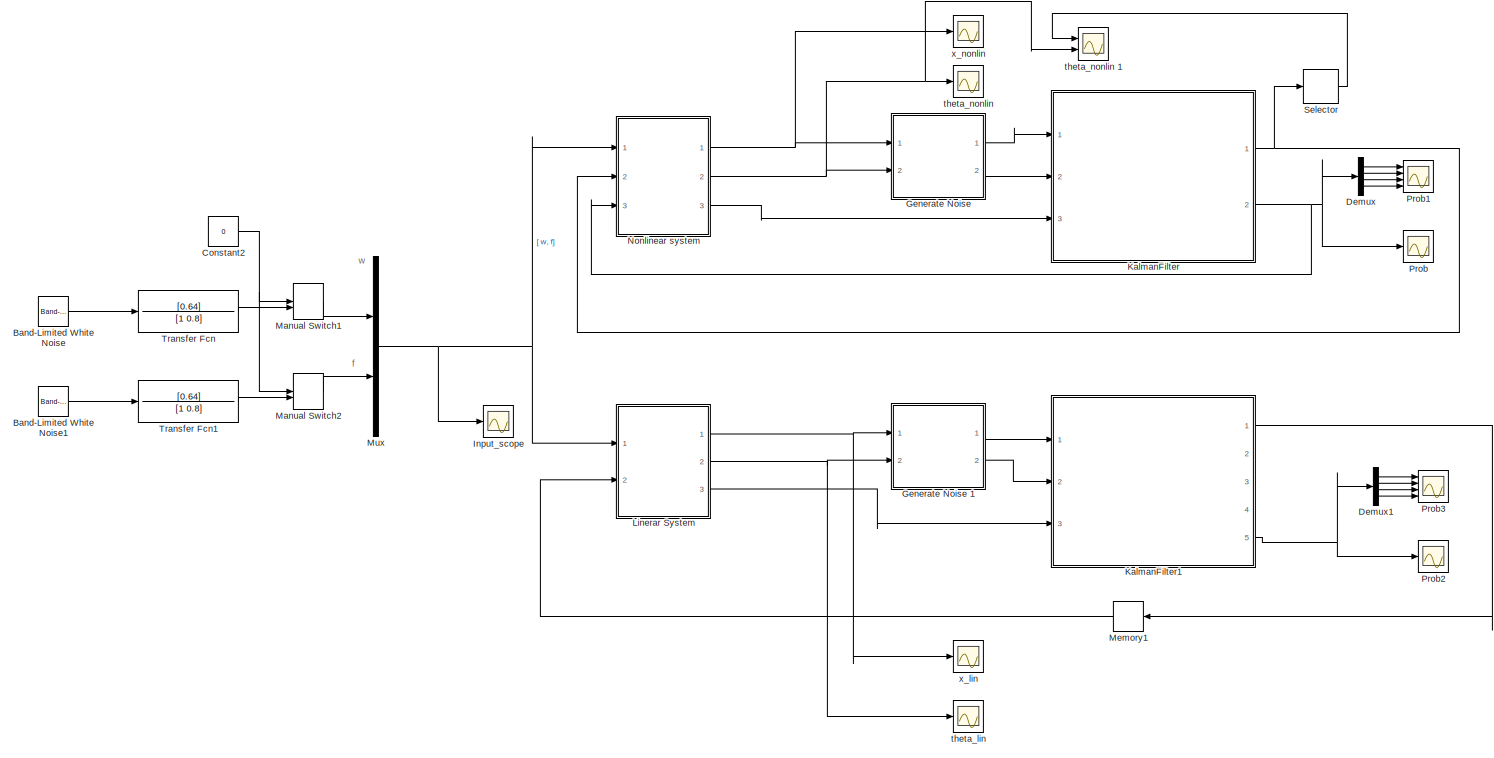
[diagram: root canvas - part 1/1, most of the canvas]
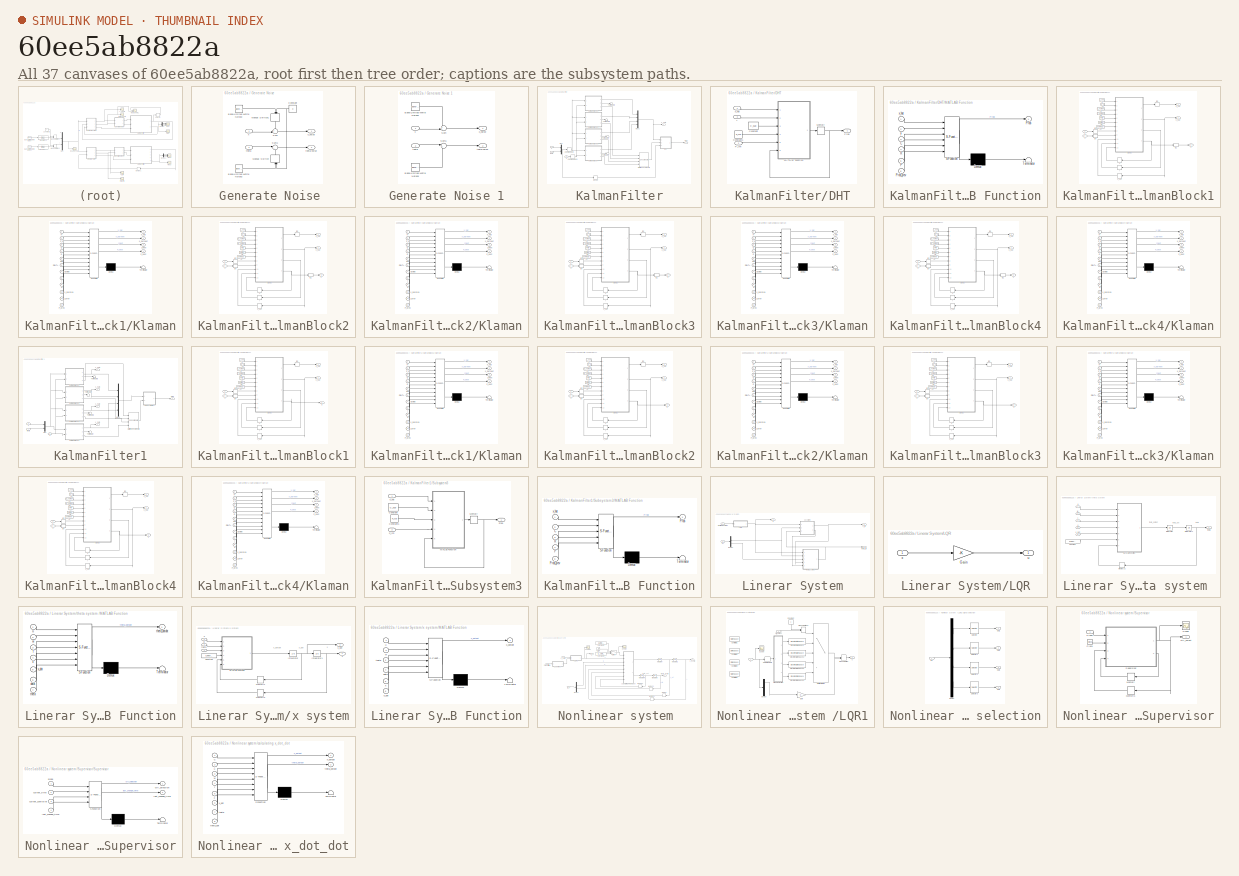
[diagram: thumbnail index - all 37 canvases of the model, root first then tree order]
MODEL slx_60ee5ab8822a
KIND model
CONFIG AbsTol = auto
CONFIG EnableMultiTasking = off
CONFIG FixedStep = h
CONFIG MaxStep = auto
CONFIG MinStep = auto
CONFIG RelTol = 1e-3
CONFIG SampleTimeConstraint = Unconstrained
CONFIG Solver = ode3
CONFIG SolverName = ode3
CONFIG StartTime = 0.0
CONFIG StopTime = T_max
BLOCK [Reference] Band-Limited White Noise  REF=simulink/Sources/Band-Limited
White Noise
  Ports = [0, 1]
  SourceBlock = simulink/Sources/Band-Limited\nWhite Noise
  SourceProductBaseCode = SL
  SourceProductName = Simulink
  SourceType = Band-Limited White Noise.
BLOCK [Reference] Band-Limited White Noise1  REF=simulink/Sources/Band-Limited
White Noise
  Ports = [0, 1]
  SourceBlock = simulink/Sources/Band-Limited\nWhite Noise
  SourceProductBaseCode = SL
  SourceProductName = Simulink
  SourceType = Band-Limited White Noise.
BLOCK [Constant] Constant2
  Value = 0
BLOCK [Demux] Demux
  DisplayOption = bar
  Ports = [1, 4]
BLOCK [Demux] Demux1
  DisplayOption = bar
  Ports = [1, 4]
BLOCK [SubSystem] Generate Noise 
  Ports = [2, 2]
  RequestExecContextInheritance = off
  Variant = off
BLOCK [Reference] Generate Noise /Band-Limited White Noise2  REF=simulink/Sources/Band-Limited
White Noise
  Ports = [0, 1]
  SourceBlock = simulink/Sources/Band-Limited\nWhite Noise
  SourceProductBaseCode = SL
  SourceProductName = Simulink
  SourceType = Band-Limited White Noise.
BLOCK [Reference] Generate Noise /Band-Limited White Noise3  REF=simulink/Sources/Band-Limited
White Noise
  Ports = [0, 1]
  SourceBlock = simulink/Sources/Band-Limited\nWhite Noise
  SourceProductBaseCode = SL
  SourceProductName = Simulink
  SourceType = Band-Limited White Noise.
BLOCK [Constant] Generate Noise /Constant
  Value = 0
BLOCK [ManualSwitch] Generate Noise /Manual Switch
  CurrentSetting = 0
BLOCK [ManualSwitch] Generate Noise /Manual Switch1
  CurrentSetting = 0
BLOCK [Sum] Generate Noise /Sum
  IconShape = round
  InputSameDT = off
  Inputs = ++|
  OutDataTypeStr = Inherit: Inherit via internal rule
  Ports = [2, 1]
  SaturateOnIntegerOverflow = off
BLOCK [Sum] Generate Noise /Sum1
  IconShape = round
  InputSameDT = off
  Inputs = |++
  OutDataTypeStr = Inherit: Inherit via internal rule
  Ports = [2, 1]
  SaturateOnIntegerOverflow = off
BLOCK [Inport] Generate Noise /theta
  IconDisplay = Port number
  Port = 2
BLOCK [Outport] Generate Noise /theta-noise
  IconDisplay = Port number
  Port = 2
BLOCK [Inport] Generate Noise /x
  IconDisplay = Port number
BLOCK [Outport] Generate Noise /x_noise
  IconDisplay = Port number
BLOCK [SubSystem] Generate Noise 1
  Ports = [2, 2]
  RequestExecContextInheritance = off
  Variant = off
BLOCK [Reference] Generate Noise 1/Band-Limited White Noise2  REF=simulink/Sources/Band-Limited
White Noise
  Ports = [0, 1]
  SourceBlock = simulink/Sources/Band-Limited\nWhite Noise
  SourceProductBaseCode = SL
  SourceProductName = Simulink
  SourceType = Band-Limited White Noise.
BLOCK [Reference] Generate Noise 1/Band-Limited White Noise3  REF=simulink/Sources/Band-Limited
White Noise
  Ports = [0, 1]
  SourceBlock = simulink/Sources/Band-Limited\nWhite Noise
  SourceProductBaseCode = SL
  SourceProductName = Simulink
  SourceType = Band-Limited White Noise.
BLOCK [Sum] Generate Noise 1/Sum
  IconShape = round
  InputSameDT = off
  Inputs = ++|
  OutDataTypeStr = Inherit: Inherit via internal rule
  Ports = [2, 1]
  SaturateOnIntegerOverflow = off
BLOCK [Sum] Generate Noise 1/Sum1
  IconShape = round
  InputSameDT = off
  Inputs = |++
  OutDataTypeStr = Inherit: Inherit via internal rule
  Ports = [2, 1]
  SaturateOnIntegerOverflow = off
BLOCK [Inport] Generate Noise 1/theta
  IconDisplay = Port number
  Port = 2
BLOCK [Outport] Generate Noise 1/theta-noise
  IconDisplay = Port number
  Port = 2
BLOCK [Inport] Generate Noise 1/x
  IconDisplay = Port number
BLOCK [Outport] Generate Noise 1/x_noise
  IconDisplay = Port number
BLOCK [Scope] Input_scope
  NumInputPorts = 1
  Ports = [1]
  ScopeSpecificationString = Simulink.scopes.TimeScopeBlockCfg('CurrentConfiguration', extmgr.ConfigurationSet(extmgr.Configuration('Core','General UI',true),extmgr.Configuration('Core','Source UI',true),extmgr.Configuration('Sources','WiredSimulink',true,'DataLoggingVariableName','ScopeData4','DataLoggingSaveFormat','Array','DataLoggingDecimation','1','DataLoggingDecimateData',true),extmgr.Configuration('Visuals','Time Domai...<+1691ch>
BLOCK [SubSystem] KalmanFilter
  Ports = [3, 2]
  RequestExecContextInheritance = off
  Variant = off
BLOCK [SubSystem] KalmanFilter/DHT
  Ports = [3, 1]
  RequestExecContextInheritance = off
  Variant = off
BLOCK [Constant] KalmanFilter/DHT/Constant
  Value = C_sup
BLOCK [Constant] KalmanFilter/DHT/Constant1
  Value = R_sup
BLOCK [SubSystem] KalmanFilter/DHT/MATLAB Function
  ErrorFcn = Stateflow.Translate.translate
  PermitHierarchicalResolution = ExplicitOnly
  Ports = [6, 1]
  RequestExecContextInheritance = off
  SFBlockType = MATLAB Function
  TreatAsAtomicUnit = on
  Variant = off
BLOCK [Demux] KalmanFilter/DHT/MATLAB Function/ Demux 
  Outputs = 1
  Ports = [1, 1]
BLOCK [S-Function] KalmanFilter/DHT/MATLAB Function/ SFunction 
  EnableBusSupport = on
  FunctionName = sf_sfun
  PortCounts = [6 2]
  Ports = [6, 2]
  SFcnIsStateOwnerBlock = off
  SFunctionDeploymentMode = off
  Tag = Stateflow S-Function ModelSupervisor 9
BLOCK [Terminator] KalmanFilter/DHT/MATLAB Function/ Terminator 
BLOCK [Inport] KalmanFilter/DHT/MATLAB Function/C
  IconDisplay = Port number
  Port = 3
BLOCK [Inport] KalmanFilter/DHT/MATLAB Function/P
  IconDisplay = Port number
  Port = 5
BLOCK [Outport] KalmanFilter/DHT/MATLAB Function/Prob
  IconDisplay = Port number
BLOCK [Inport] KalmanFilter/DHT/MATLAB Function/Prob_prev
  IconDisplay = Port number
  Port = 6
BLOCK [Inport] KalmanFilter/DHT/MATLAB Function/R
  IconDisplay = Port number
  Port = 4
BLOCK [Inport] KalmanFilter/DHT/MATLAB Function/x_hat
  IconDisplay = Port number
BLOCK [Inport] KalmanFilter/DHT/MATLAB Function/y
  IconDisplay = Port number
  Port = 2
BLOCK [Memory] KalmanFilter/DHT/Memory
  InitialCondition = [1/4 1/4 1/4 1/4]'
BLOCK [Inport] KalmanFilter/DHT/P_inn
  IconDisplay = Port number
  Port = 2
BLOCK [Outport] KalmanFilter/DHT/Prob
  IconDisplay = Port number
  PortDimensions = [4]
BLOCK [Inport] KalmanFilter/DHT/x_hat
  IconDisplay = Port number
BLOCK [Inport] KalmanFilter/DHT/y
  IconDisplay = Port number
  Port = 3
BLOCK [SubSystem] KalmanFilter/KalmanBlock1
  Ports = [2, 3]
  RequestExecContextInheritance = off
  Variant = off
BLOCK [Constant] KalmanFilter/KalmanBlock1/A2
  Value = C_sup
BLOCK [Constant] KalmanFilter/KalmanBlock1/A4
  Value = phi{1}
BLOCK [Constant] KalmanFilter/KalmanBlock1/A5
  Value = delta{1}
BLOCK [Constant] KalmanFilter/KalmanBlock1/A6
  Value = gamma{1}
BLOCK [Constant] KalmanFilter/KalmanBlock1/A7
  Value = P_0
BLOCK [Constant] KalmanFilter/KalmanBlock1/A8
  Value = Q_kalman
BLOCK [Constant] KalmanFilter/KalmanBlock1/A9
  Value = R_kalman
BLOCK [InitialCondition] KalmanFilter/KalmanBlock1/IC1
  Value = P_0
BLOCK [InitialCondition] KalmanFilter/KalmanBlock1/IC3
  Value = y_0
BLOCK [InitialCondition] KalmanFilter/KalmanBlock1/IC4
  Value = 0
BLOCK [InitialCondition] KalmanFilter/KalmanBlock1/IC5
  Value = X_0
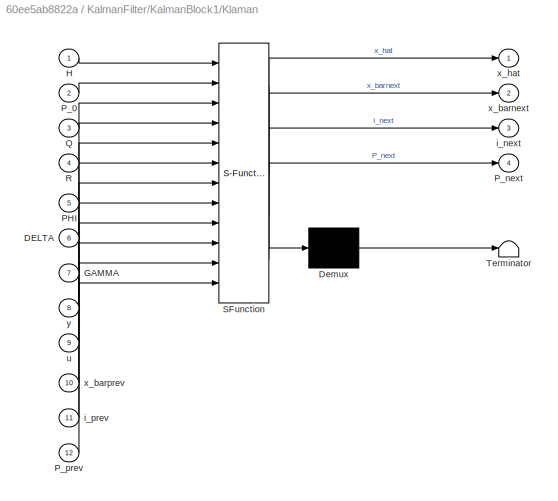
BLOCK [SubSystem] KalmanFilter/KalmanBlock1/Klaman
  ErrorFcn = Stateflow.Translate.translate
  PermitHierarchicalResolution = ExplicitOnly
  Ports = [12, 4]
  RequestExecContextInheritance = off
  SFBlockType = MATLAB Function
  TreatAsAtomicUnit = on
  Variant = off
BLOCK [Demux] KalmanFilter/KalmanBlock1/Klaman/ Demux 
  Outputs = 1
  Ports = [1, 1]
BLOCK [S-Function] KalmanFilter/KalmanBlock1/Klaman/ SFunction 
  EnableBusSupport = on
  FunctionName = sf_sfun
  PortCounts = [12 5]
  Ports = [12, 5]
  SFcnIsStateOwnerBlock = off
  SFunctionDeploymentMode = off
  Tag = Stateflow S-Function ModelSupervisor 8
BLOCK [Terminator] KalmanFilter/KalmanBlock1/Klaman/ Terminator 
BLOCK [Inport] KalmanFilter/KalmanBlock1/Klaman/DELTA
  IconDisplay = Port number
  Port = 6
BLOCK [Inport] KalmanFilter/KalmanBlock1/Klaman/GAMMA
  IconDisplay = Port number
  Port = 7
BLOCK [Inport] KalmanFilter/KalmanBlock1/Klaman/H
  IconDisplay = Port number
BLOCK [Inport] KalmanFilter/KalmanBlock1/Klaman/PHI
  IconDisplay = Port number
  Port = 5
BLOCK [Inport] KalmanFilter/KalmanBlock1/Klaman/P_0
  IconDisplay = Port number
  Port = 2
BLOCK [Outport] KalmanFilter/KalmanBlock1/Klaman/P_next
  IconDisplay = Port number
  Port = 4
BLOCK [Inport] KalmanFilter/KalmanBlock1/Klaman/P_prev
  IconDisplay = Port number
  Port = 12
BLOCK [Inport] KalmanFilter/KalmanBlock1/Klaman/Q
  IconDisplay = Port number
  Port = 3
BLOCK [Inport] KalmanFilter/KalmanBlock1/Klaman/R
  IconDisplay = Port number
  Port = 4
BLOCK [Outport] KalmanFilter/KalmanBlock1/Klaman/i_next
  IconDisplay = Port number
  Port = 3
BLOCK [Inport] KalmanFilter/KalmanBlock1/Klaman/i_prev
  IconDisplay = Port number
  Port = 11
BLOCK [Inport] KalmanFilter/KalmanBlock1/Klaman/u
  IconDisplay = Port number
  Port = 9
BLOCK [Outport] KalmanFilter/KalmanBlock1/Klaman/x_barnext
  IconDisplay = Port number
  Port = 2
BLOCK [Inport] KalmanFilter/KalmanBlock1/Klaman/x_barprev
  IconDisplay = Port number
  Port = 10
BLOCK [Outport] KalmanFilter/KalmanBlock1/Klaman/x_hat
  IconDisplay = Port number
BLOCK [Inport] KalmanFilter/KalmanBlock1/Klaman/y
  IconDisplay = Port number
  Port = 8
BLOCK [Memory] KalmanFilter/KalmanBlock1/P
  InitialCondition = P_0
BLOCK [Memory] KalmanFilter/KalmanBlock1/i 
BLOCK [Outport] KalmanFilter/KalmanBlock1/p
  IconDisplay = Port number
  Port = 3
BLOCK [Inport] KalmanFilter/KalmanBlock1/u 
  IconDisplay = Port number
  Port = 2
BLOCK [Outport] KalmanFilter/KalmanBlock1/x_bar
  IconDisplay = Port number
  Port = 2
BLOCK [Memory] KalmanFilter/KalmanBlock1/x_bar'
  InitialCondition = X_0
BLOCK [Outport] KalmanFilter/KalmanBlock1/x_hat
  IconDisplay = Port number
BLOCK [Inport] KalmanFilter/KalmanBlock1/y 
  IconDisplay = Port number
BLOCK [SubSystem] KalmanFilter/KalmanBlock2
  Ports = [2, 3]
  RequestExecContextInheritance = off
  Variant = off
BLOCK [Constant] KalmanFilter/KalmanBlock2/A2
  Value = C_sup
BLOCK [Constant] KalmanFilter/KalmanBlock2/A4
  Value = phi{2}
BLOCK [Constant] KalmanFilter/KalmanBlock2/A5
  Value = delta{2}
BLOCK [Constant] KalmanFilter/KalmanBlock2/A6
  Value = gamma{2}
BLOCK [Constant] KalmanFilter/KalmanBlock2/A7
  Value = P_0
BLOCK [Constant] KalmanFilter/KalmanBlock2/A8
  Value = Q_kalman
BLOCK [Constant] KalmanFilter/KalmanBlock2/A9
  Value = R_kalman
BLOCK [InitialCondition] KalmanFilter/KalmanBlock2/IC1
  Value = P_0
BLOCK [InitialCondition] KalmanFilter/KalmanBlock2/IC3
  Value = y_0
BLOCK [InitialCondition] KalmanFilter/KalmanBlock2/IC4
  Value = 0
BLOCK [InitialCondition] KalmanFilter/KalmanBlock2/IC5
  Value = X_0
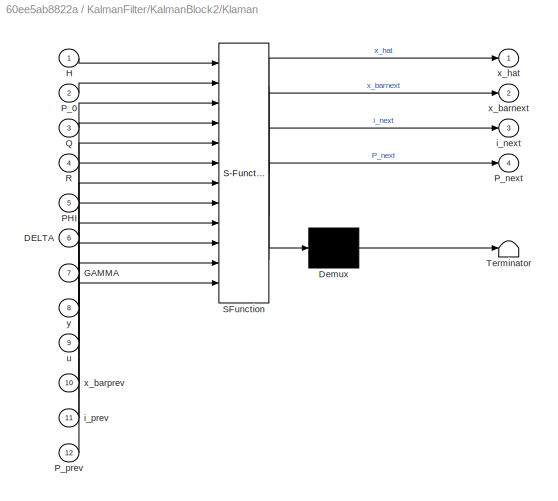
BLOCK [SubSystem] KalmanFilter/KalmanBlock2/Klaman
  ErrorFcn = Stateflow.Translate.translate
  PermitHierarchicalResolution = ExplicitOnly
  Ports = [12, 4]
  RequestExecContextInheritance = off
  SFBlockType = MATLAB Function
  TreatAsAtomicUnit = on
  Variant = off
BLOCK [Demux] KalmanFilter/KalmanBlock2/Klaman/ Demux 
  Outputs = 1
  Ports = [1, 1]
BLOCK [S-Function] KalmanFilter/KalmanBlock2/Klaman/ SFunction 
  EnableBusSupport = on
  FunctionName = sf_sfun
  PortCounts = [12 5]
  Ports = [12, 5]
  SFcnIsStateOwnerBlock = off
  SFunctionDeploymentMode = off
  Tag = Stateflow S-Function ModelSupervisor 7
BLOCK [Terminator] KalmanFilter/KalmanBlock2/Klaman/ Terminator 
BLOCK [Inport] KalmanFilter/KalmanBlock2/Klaman/DELTA
  IconDisplay = Port number
  Port = 6
BLOCK [Inport] KalmanFilter/KalmanBlock2/Klaman/GAMMA
  IconDisplay = Port number
  Port = 7
BLOCK [Inport] KalmanFilter/KalmanBlock2/Klaman/H
  IconDisplay = Port number
BLOCK [Inport] KalmanFilter/KalmanBlock2/Klaman/PHI
  IconDisplay = Port number
  Port = 5
BLOCK [Inport] KalmanFilter/KalmanBlock2/Klaman/P_0
  IconDisplay = Port number
  Port = 2
BLOCK [Outport] KalmanFilter/KalmanBlock2/Klaman/P_next
  IconDisplay = Port number
  Port = 4
BLOCK [Inport] KalmanFilter/KalmanBlock2/Klaman/P_prev
  IconDisplay = Port number
  Port = 12
BLOCK [Inport] KalmanFilter/KalmanBlock2/Klaman/Q
  IconDisplay = Port number
  Port = 3
BLOCK [Inport] KalmanFilter/KalmanBlock2/Klaman/R
  IconDisplay = Port number
  Port = 4
BLOCK [Outport] KalmanFilter/KalmanBlock2/Klaman/i_next
  IconDisplay = Port number
  Port = 3
BLOCK [Inport] KalmanFilter/KalmanBlock2/Klaman/i_prev
  IconDisplay = Port number
  Port = 11
BLOCK [Inport] KalmanFilter/KalmanBlock2/Klaman/u
  IconDisplay = Port number
  Port = 9
BLOCK [Outport] KalmanFilter/KalmanBlock2/Klaman/x_barnext
  IconDisplay = Port number
  Port = 2
BLOCK [Inport] KalmanFilter/KalmanBlock2/Klaman/x_barprev
  IconDisplay = Port number
  Port = 10
BLOCK [Outport] KalmanFilter/KalmanBlock2/Klaman/x_hat
  IconDisplay = Port number
BLOCK [Inport] KalmanFilter/KalmanBlock2/Klaman/y
  IconDisplay = Port number
  Port = 8
BLOCK [Memory] KalmanFilter/KalmanBlock2/P
  InitialCondition = P_0
BLOCK [Memory] KalmanFilter/KalmanBlock2/i 
BLOCK [Outport] KalmanFilter/KalmanBlock2/p
  IconDisplay = Port number
  Port = 3
BLOCK [Inport] KalmanFilter/KalmanBlock2/u 
  IconDisplay = Port number
  Port = 2
BLOCK [Outport] KalmanFilter/KalmanBlock2/x_bar
  IconDisplay = Port number
  Port = 2
BLOCK [Memory] KalmanFilter/KalmanBlock2/x_bar'
  InitialCondition = X_0
BLOCK [Outport] KalmanFilter/KalmanBlock2/x_hat
  IconDisplay = Port number
BLOCK [Inport] KalmanFilter/KalmanBlock2/y 
  IconDisplay = Port number
BLOCK [SubSystem] KalmanFilter/KalmanBlock3
  Ports = [2, 3]
  RequestExecContextInheritance = off
  Variant = off
BLOCK [Constant] KalmanFilter/KalmanBlock3/A2
  Value = C_sup
BLOCK [Constant] KalmanFilter/KalmanBlock3/A4
  Value = phi{3}
BLOCK [Constant] KalmanFilter/KalmanBlock3/A5
  Value = delta{3}
BLOCK [Constant] KalmanFilter/KalmanBlock3/A6
  Value = gamma{3}
BLOCK [Constant] KalmanFilter/KalmanBlock3/A7
  Value = P_0
BLOCK [Constant] KalmanFilter/KalmanBlock3/A8
  Value = Q_kalman
BLOCK [Constant] KalmanFilter/KalmanBlock3/A9
  Value = R_kalman
BLOCK [InitialCondition] KalmanFilter/KalmanBlock3/IC1
  Value = P_0
BLOCK [InitialCondition] KalmanFilter/KalmanBlock3/IC3
  Value = y_0
BLOCK [InitialCondition] KalmanFilter/KalmanBlock3/IC4
  Value = 0
BLOCK [InitialCondition] KalmanFilter/KalmanBlock3/IC5
  Value = X_0
BLOCK [SubSystem] KalmanFilter/KalmanBlock3/Klaman
  ErrorFcn = Stateflow.Translate.translate
  PermitHierarchicalResolution = ExplicitOnly
  Ports = [12, 4]
  RequestExecContextInheritance = off
  SFBlockType = MATLAB Function
  TreatAsAtomicUnit = on
  Variant = off
BLOCK [Demux] KalmanFilter/KalmanBlock3/Klaman/ Demux 
  Outputs = 1
  Ports = [1, 1]
BLOCK [S-Function] KalmanFilter/KalmanBlock3/Klaman/ SFunction 
  EnableBusSupport = on
  FunctionName = sf_sfun
  PortCounts = [12 5]
  Ports = [12, 5]
  SFcnIsStateOwnerBlock = off
  SFunctionDeploymentMode = off
  Tag = Stateflow S-Function ModelSupervisor 6
BLOCK [Terminator] KalmanFilter/KalmanBlock3/Klaman/ Terminator 
BLOCK [Inport] KalmanFilter/KalmanBlock3/Klaman/DELTA
  IconDisplay = Port number
  Port = 6
BLOCK [Inport] KalmanFilter/KalmanBlock3/Klaman/GAMMA
  IconDisplay = Port number
  Port = 7
BLOCK [Inport] KalmanFilter/KalmanBlock3/Klaman/H
  IconDisplay = Port number
BLOCK [Inport] KalmanFilter/KalmanBlock3/Klaman/PHI
  IconDisplay = Port number
  Port = 5
BLOCK [Inport] KalmanFilter/KalmanBlock3/Klaman/P_0
  IconDisplay = Port number
  Port = 2
BLOCK [Outport] KalmanFilter/KalmanBlock3/Klaman/P_next
  IconDisplay = Port number
  Port = 4
BLOCK [Inport] KalmanFilter/KalmanBlock3/Klaman/P_prev
  IconDisplay = Port number
  Port = 12
BLOCK [Inport] KalmanFilter/KalmanBlock3/Klaman/Q
  IconDisplay = Port number
  Port = 3
BLOCK [Inport] KalmanFilter/KalmanBlock3/Klaman/R
  IconDisplay = Port number
  Port = 4
BLOCK [Outport] KalmanFilter/KalmanBlock3/Klaman/i_next
  IconDisplay = Port number
  Port = 3
BLOCK [Inport] KalmanFilter/KalmanBlock3/Klaman/i_prev
  IconDisplay = Port number
  Port = 11
BLOCK [Inport] KalmanFilter/KalmanBlock3/Klaman/u
  IconDisplay = Port number
  Port = 9
BLOCK [Outport] KalmanFilter/KalmanBlock3/Klaman/x_barnext
  IconDisplay = Port number
  Port = 2
BLOCK [Inport] KalmanFilter/KalmanBlock3/Klaman/x_barprev
  IconDisplay = Port number
  Port = 10
BLOCK [Outport] KalmanFilter/KalmanBlock3/Klaman/x_hat
  IconDisplay = Port number
BLOCK [Inport] KalmanFilter/KalmanBlock3/Klaman/y
  IconDisplay = Port number
  Port = 8
BLOCK [Memory] KalmanFilter/KalmanBlock3/P
  InitialCondition = P_0
BLOCK [Memory] KalmanFilter/KalmanBlock3/i 
BLOCK [Outport] KalmanFilter/KalmanBlock3/p
  IconDisplay = Port number
  Port = 3
BLOCK [Inport] KalmanFilter/KalmanBlock3/u 
  IconDisplay = Port number
  Port = 2
BLOCK [Outport] KalmanFilter/KalmanBlock3/x_bar
  IconDisplay = Port number
  Port = 2
BLOCK [Memory] KalmanFilter/KalmanBlock3/x_bar'
  InitialCondition = X_0
BLOCK [Outport] KalmanFilter/KalmanBlock3/x_hat
  IconDisplay = Port number
BLOCK [Inport] KalmanFilter/KalmanBlock3/y 
  IconDisplay = Port number
BLOCK [SubSystem] KalmanFilter/KalmanBlock4
  Ports = [2, 3]
  RequestExecContextInheritance = off
  Variant = off
BLOCK [Constant] KalmanFilter/KalmanBlock4/A2
  Value = C_sup
BLOCK [Constant] KalmanFilter/KalmanBlock4/A4
  Value = phi{4}
BLOCK [Constant] KalmanFilter/KalmanBlock4/A5
  Value = delta{4}
BLOCK [Constant] KalmanFilter/KalmanBlock4/A6
  Value = gamma{4}
BLOCK [Constant] KalmanFilter/KalmanBlock4/A7
  Value = P_0
BLOCK [Constant] KalmanFilter/KalmanBlock4/A8
  Value = Q_kalman
BLOCK [Constant] KalmanFilter/KalmanBlock4/A9
  Value = R_kalman
BLOCK [InitialCondition] KalmanFilter/KalmanBlock4/IC1
  Value = P_0
BLOCK [InitialCondition] KalmanFilter/KalmanBlock4/IC3
  Value = y_0
BLOCK [InitialCondition] KalmanFilter/KalmanBlock4/IC4
  Value = 0
BLOCK [InitialCondition] KalmanFilter/KalmanBlock4/IC5
  Value = X_0
BLOCK [SubSystem] KalmanFilter/KalmanBlock4/Klaman
  ErrorFcn = Stateflow.Translate.translate
  PermitHierarchicalResolution = ExplicitOnly
  Ports = [12, 4]
  RequestExecContextInheritance = off
  SFBlockType = MATLAB Function
  TreatAsAtomicUnit = on
  Variant = off
BLOCK [Demux] KalmanFilter/KalmanBlock4/Klaman/ Demux 
  Outputs = 1
  Ports = [1, 1]
BLOCK [S-Function] KalmanFilter/KalmanBlock4/Klaman/ SFunction 
  EnableBusSupport = on
  FunctionName = sf_sfun
  PortCounts = [12 5]
  Ports = [12, 5]
  SFcnIsStateOwnerBlock = off
  SFunctionDeploymentMode = off
  Tag = Stateflow S-Function ModelSupervisor 2
BLOCK [Terminator] KalmanFilter/KalmanBlock4/Klaman/ Terminator 
BLOCK [Inport] KalmanFilter/KalmanBlock4/Klaman/DELTA
  IconDisplay = Port number
  Port = 6
BLOCK [Inport] KalmanFilter/KalmanBlock4/Klaman/GAMMA
  IconDisplay = Port number
  Port = 7
BLOCK [Inport] KalmanFilter/KalmanBlock4/Klaman/H
  IconDisplay = Port number
BLOCK [Inport] KalmanFilter/KalmanBlock4/Klaman/PHI
  IconDisplay = Port number
  Port = 5
BLOCK [Inport] KalmanFilter/KalmanBlock4/Klaman/P_0
  IconDisplay = Port number
  Port = 2
BLOCK [Outport] KalmanFilter/KalmanBlock4/Klaman/P_next
  IconDisplay = Port number
  Port = 4
BLOCK [Inport] KalmanFilter/KalmanBlock4/Klaman/P_prev
  IconDisplay = Port number
  Port = 12
BLOCK [Inport] KalmanFilter/KalmanBlock4/Klaman/Q
  IconDisplay = Port number
  Port = 3
BLOCK [Inport] KalmanFilter/KalmanBlock4/Klaman/R
  IconDisplay = Port number
  Port = 4
BLOCK [Outport] KalmanFilter/KalmanBlock4/Klaman/i_next
  IconDisplay = Port number
  Port = 3
BLOCK [Inport] KalmanFilter/KalmanBlock4/Klaman/i_prev
  IconDisplay = Port number
  Port = 11
BLOCK [Inport] KalmanFilter/KalmanBlock4/Klaman/u
  IconDisplay = Port number
  Port = 9
BLOCK [Outport] KalmanFilter/KalmanBlock4/Klaman/x_barnext
  IconDisplay = Port number
  Port = 2
BLOCK [Inport] KalmanFilter/KalmanBlock4/Klaman/x_barprev
  IconDisplay = Port number
  Port = 10
BLOCK [Outport] KalmanFilter/KalmanBlock4/Klaman/x_hat
  IconDisplay = Port number
BLOCK [Inport] KalmanFilter/KalmanBlock4/Klaman/y
  IconDisplay = Port number
  Port = 8
BLOCK [Memory] KalmanFilter/KalmanBlock4/P
  InitialCondition = P_0
BLOCK [Memory] KalmanFilter/KalmanBlock4/i 
BLOCK [Outport] KalmanFilter/KalmanBlock4/p
  IconDisplay = Port number
  Port = 3
BLOCK [Inport] KalmanFilter/KalmanBlock4/u 
  IconDisplay = Port number
  Port = 2
BLOCK [Outport] KalmanFilter/KalmanBlock4/x_bar
  IconDisplay = Port number
  Port = 2
BLOCK [Memory] KalmanFilter/KalmanBlock4/x_bar'
  InitialCondition = X_0
BLOCK [Outport] KalmanFilter/KalmanBlock4/x_hat
  IconDisplay = Port number
BLOCK [Inport] KalmanFilter/KalmanBlock4/y 
  IconDisplay = Port number
BLOCK [Concatenate] KalmanFilter/Matrix Concatenate
  ConcatenateDimension = 2
  Mode = Multidimensional array
  NumInputs = 4
  Ports = [4, 1]
BLOCK [Memory] KalmanFilter/Memory
  InitialCondition = [x_0 theta_0]
BLOCK [Mux] KalmanFilter/Mux
  DisplayOption = bar
  Inputs = 2
  Ports = [2, 1]
BLOCK [Mux] KalmanFilter/Mux1
  DisplayOption = bar
  Ports = [4, 1]
BLOCK [Outport] KalmanFilter/Prob
  IconDisplay = Port number
  Port = 2
BLOCK [Terminator] KalmanFilter/Terminator
BLOCK [Terminator] KalmanFilter/Terminator1
BLOCK [Terminator] KalmanFilter/Terminator2
BLOCK [Terminator] KalmanFilter/Terminator3
BLOCK [ZeroOrderHold] KalmanFilter/Zero-Order Hold
  SampleTime = h
BLOCK [ZeroOrderHold] KalmanFilter/Zero-Order Hold1
  SampleTime = h
BLOCK [Inport] KalmanFilter/theta
  IconDisplay = Port number
  Port = 2
BLOCK [Inport] KalmanFilter/u 
  IconDisplay = Port number
  Port = 3
BLOCK [Inport] KalmanFilter/x
  IconDisplay = Port number
BLOCK [Outport] KalmanFilter/x_hats
  IconDisplay = Port number
BLOCK [SubSystem] KalmanFilter1
  Ports = [3, 5]
  RequestExecContextInheritance = off
  Variant = off
BLOCK [SubSystem] KalmanFilter1/KalmanBlock1
  Ports = [2, 3]
  RequestExecContextInheritance = off
  Variant = off
BLOCK [Constant] KalmanFilter1/KalmanBlock1/A2
  Value = C_sup
BLOCK [Constant] KalmanFilter1/KalmanBlock1/A4
  Value = phi{1}
BLOCK [Constant] KalmanFilter1/KalmanBlock1/A5
  Value = delta{1}
BLOCK [Constant] KalmanFilter1/KalmanBlock1/A6
  Value = gamma{1}
BLOCK [Constant] KalmanFilter1/KalmanBlock1/A7
  Value = P_0
BLOCK [Constant] KalmanFilter1/KalmanBlock1/A8
  Value = Q_kalman
BLOCK [Constant] KalmanFilter1/KalmanBlock1/A9
  Value = R_kalman
BLOCK [InitialCondition] KalmanFilter1/KalmanBlock1/IC3
  Value = y_0
BLOCK [InitialCondition] KalmanFilter1/KalmanBlock1/IC4
  Value = 0
BLOCK [InitialCondition] KalmanFilter1/KalmanBlock1/IC5
  Value = X_0
BLOCK [SubSystem] KalmanFilter1/KalmanBlock1/Klaman
  ErrorFcn = Stateflow.Translate.translate
  PermitHierarchicalResolution = ExplicitOnly
  Ports = [12, 4]
  RequestExecContextInheritance = off
  SFBlockType = MATLAB Function
  TreatAsAtomicUnit = on
  Variant = off
BLOCK [Demux] KalmanFilter1/KalmanBlock1/Klaman/ Demux 
  Outputs = 1
  Ports = [1, 1]
BLOCK [S-Function] KalmanFilter1/KalmanBlock1/Klaman/ SFunction 
  EnableBusSupport = on
  FunctionName = sf_sfun
  PortCounts = [12 5]
  Ports = [12, 5]
  SFcnIsStateOwnerBlock = off
  SFunctionDeploymentMode = off
  Tag = Stateflow S-Function ModelSupervisor 5
BLOCK [Terminator] KalmanFilter1/KalmanBlock1/Klaman/ Terminator 
BLOCK [Inport] KalmanFilter1/KalmanBlock1/Klaman/DELTA
  IconDisplay = Port number
  Port = 6
BLOCK [Inport] KalmanFilter1/KalmanBlock1/Klaman/GAMMA
  IconDisplay = Port number
  Port = 7
BLOCK [Inport] KalmanFilter1/KalmanBlock1/Klaman/H
  IconDisplay = Port number
BLOCK [Inport] KalmanFilter1/KalmanBlock1/Klaman/PHI
  IconDisplay = Port number
  Port = 5
BLOCK [Inport] KalmanFilter1/KalmanBlock1/Klaman/P_0
  IconDisplay = Port number
  Port = 2
BLOCK [Outport] KalmanFilter1/KalmanBlock1/Klaman/P_next
  IconDisplay = Port number
  Port = 4
BLOCK [Inport] KalmanFilter1/KalmanBlock1/Klaman/P_prev
  IconDisplay = Port number
  Port = 12
BLOCK [Inport] KalmanFilter1/KalmanBlock1/Klaman/Q
  IconDisplay = Port number
  Port = 3
BLOCK [Inport] KalmanFilter1/KalmanBlock1/Klaman/R
  IconDisplay = Port number
  Port = 4
BLOCK [Outport] KalmanFilter1/KalmanBlock1/Klaman/i_next
  IconDisplay = Port number
  Port = 3
BLOCK [Inport] KalmanFilter1/KalmanBlock1/Klaman/i_prev
  IconDisplay = Port number
  Port = 11
BLOCK [Inport] KalmanFilter1/KalmanBlock1/Klaman/u
  IconDisplay = Port number
  Port = 9
BLOCK [Outport] KalmanFilter1/KalmanBlock1/Klaman/x_barnext
  IconDisplay = Port number
  Port = 2
BLOCK [Inport] KalmanFilter1/KalmanBlock1/Klaman/x_barprev
  IconDisplay = Port number
  Port = 10
BLOCK [Outport] KalmanFilter1/KalmanBlock1/Klaman/x_hat
  IconDisplay = Port number
BLOCK [Inport] KalmanFilter1/KalmanBlock1/Klaman/y
  IconDisplay = Port number
  Port = 8
BLOCK [Memory] KalmanFilter1/KalmanBlock1/P
  InitialCondition = P_0
BLOCK [Memory] KalmanFilter1/KalmanBlock1/i 
BLOCK [Outport] KalmanFilter1/KalmanBlock1/p
  IconDisplay = Port number
  Port = 3
BLOCK [Inport] KalmanFilter1/KalmanBlock1/u 
  IconDisplay = Port number
  Port = 2
BLOCK [Outport] KalmanFilter1/KalmanBlock1/x_bar
  IconDisplay = Port number
  Port = 2
BLOCK [Memory] KalmanFilter1/KalmanBlock1/x_bar'
  InitialCondition = X_0
BLOCK [Outport] KalmanFilter1/KalmanBlock1/x_hat
  IconDisplay = Port number
BLOCK [Inport] KalmanFilter1/KalmanBlock1/y 
  IconDisplay = Port number
BLOCK [SubSystem] KalmanFilter1/KalmanBlock2
  Ports = [2, 3]
  RequestExecContextInheritance = off
  Variant = off
BLOCK [Constant] KalmanFilter1/KalmanBlock2/A2
  Value = C_sup
BLOCK [Constant] KalmanFilter1/KalmanBlock2/A4
  Value = phi{2}
BLOCK [Constant] KalmanFilter1/KalmanBlock2/A5
  Value = delta{2}
BLOCK [Constant] KalmanFilter1/KalmanBlock2/A6
  Value = gamma{2}
BLOCK [Constant] KalmanFilter1/KalmanBlock2/A7
  Value = P_0
BLOCK [Constant] KalmanFilter1/KalmanBlock2/A8
  Value = Q_kalman
BLOCK [Constant] KalmanFilter1/KalmanBlock2/A9
  Value = R_kalman
BLOCK [InitialCondition] KalmanFilter1/KalmanBlock2/IC3
  Value = y_0
BLOCK [InitialCondition] KalmanFilter1/KalmanBlock2/IC4
  Value = 0
BLOCK [InitialCondition] KalmanFilter1/KalmanBlock2/IC5
  Value = X_0
BLOCK [SubSystem] KalmanFilter1/KalmanBlock2/Klaman
  ErrorFcn = Stateflow.Translate.translate
  PermitHierarchicalResolution = ExplicitOnly
  Ports = [12, 4]
  RequestExecContextInheritance = off
  SFBlockType = MATLAB Function
  TreatAsAtomicUnit = on
  Variant = off
BLOCK [Demux] KalmanFilter1/KalmanBlock2/Klaman/ Demux 
  Outputs = 1
  Ports = [1, 1]
BLOCK [S-Function] KalmanFilter1/KalmanBlock2/Klaman/ SFunction 
  EnableBusSupport = on
  FunctionName = sf_sfun
  PortCounts = [12 5]
  Ports = [12, 5]
  SFcnIsStateOwnerBlock = off
  SFunctionDeploymentMode = off
  Tag = Stateflow S-Function ModelSupervisor 10
BLOCK [Terminator] KalmanFilter1/KalmanBlock2/Klaman/ Terminator 
BLOCK [Inport] KalmanFilter1/KalmanBlock2/Klaman/DELTA
  IconDisplay = Port number
  Port = 6
BLOCK [Inport] KalmanFilter1/KalmanBlock2/Klaman/GAMMA
  IconDisplay = Port number
  Port = 7
BLOCK [Inport] KalmanFilter1/KalmanBlock2/Klaman/H
  IconDisplay = Port number
BLOCK [Inport] KalmanFilter1/KalmanBlock2/Klaman/PHI
  IconDisplay = Port number
  Port = 5
BLOCK [Inport] KalmanFilter1/KalmanBlock2/Klaman/P_0
  IconDisplay = Port number
  Port = 2
BLOCK [Outport] KalmanFilter1/KalmanBlock2/Klaman/P_next
  IconDisplay = Port number
  Port = 4
BLOCK [Inport] KalmanFilter1/KalmanBlock2/Klaman/P_prev
  IconDisplay = Port number
  Port = 12
BLOCK [Inport] KalmanFilter1/KalmanBlock2/Klaman/Q
  IconDisplay = Port number
  Port = 3
BLOCK [Inport] KalmanFilter1/KalmanBlock2/Klaman/R
  IconDisplay = Port number
  Port = 4
BLOCK [Outport] KalmanFilter1/KalmanBlock2/Klaman/i_next
  IconDisplay = Port number
  Port = 3
BLOCK [Inport] KalmanFilter1/KalmanBlock2/Klaman/i_prev
  IconDisplay = Port number
  Port = 11
BLOCK [Inport] KalmanFilter1/KalmanBlock2/Klaman/u
  IconDisplay = Port number
  Port = 9
BLOCK [Outport] KalmanFilter1/KalmanBlock2/Klaman/x_barnext
  IconDisplay = Port number
  Port = 2
BLOCK [Inport] KalmanFilter1/KalmanBlock2/Klaman/x_barprev
  IconDisplay = Port number
  Port = 10
BLOCK [Outport] KalmanFilter1/KalmanBlock2/Klaman/x_hat
  IconDisplay = Port number
BLOCK [Inport] KalmanFilter1/KalmanBlock2/Klaman/y
  IconDisplay = Port number
  Port = 8
BLOCK [Memory] KalmanFilter1/KalmanBlock2/P
  InitialCondition = P_0
BLOCK [Memory] KalmanFilter1/KalmanBlock2/i 
BLOCK [Outport] KalmanFilter1/KalmanBlock2/p
  IconDisplay = Port number
  Port = 3
BLOCK [Inport] KalmanFilter1/KalmanBlock2/u 
  IconDisplay = Port number
  Port = 2
BLOCK [Outport] KalmanFilter1/KalmanBlock2/x_bar
  IconDisplay = Port number
  Port = 2
BLOCK [Memory] KalmanFilter1/KalmanBlock2/x_bar'
  InitialCondition = X_0
BLOCK [Outport] KalmanFilter1/KalmanBlock2/x_hat
  IconDisplay = Port number
BLOCK [Inport] KalmanFilter1/KalmanBlock2/y 
  IconDisplay = Port number
BLOCK [SubSystem] KalmanFilter1/KalmanBlock3
  Ports = [2, 3]
  RequestExecContextInheritance = off
  Variant = off
BLOCK [Constant] KalmanFilter1/KalmanBlock3/A2
  Value = C_sup
BLOCK [Constant] KalmanFilter1/KalmanBlock3/A4
  Value = phi{3}
BLOCK [Constant] KalmanFilter1/KalmanBlock3/A5
  Value = delta{3}
BLOCK [Constant] KalmanFilter1/KalmanBlock3/A6
  Value = gamma{3}
BLOCK [Constant] KalmanFilter1/KalmanBlock3/A7
  Value = P_0
BLOCK [Constant] KalmanFilter1/KalmanBlock3/A8
  Value = Q_kalman
BLOCK [Constant] KalmanFilter1/KalmanBlock3/A9
  Value = R_kalman
BLOCK [InitialCondition] KalmanFilter1/KalmanBlock3/IC3
  Value = y_0
BLOCK [InitialCondition] KalmanFilter1/KalmanBlock3/IC4
  Value = 0
BLOCK [InitialCondition] KalmanFilter1/KalmanBlock3/IC5
  Value = X_0
BLOCK [SubSystem] KalmanFilter1/KalmanBlock3/Klaman
  ErrorFcn = Stateflow.Translate.translate
  PermitHierarchicalResolution = ExplicitOnly
  Ports = [12, 4]
  RequestExecContextInheritance = off
  SFBlockType = MATLAB Function
  TreatAsAtomicUnit = on
  Variant = off
BLOCK [Demux] KalmanFilter1/KalmanBlock3/Klaman/ Demux 
  Outputs = 1
  Ports = [1, 1]
BLOCK [S-Function] KalmanFilter1/KalmanBlock3/Klaman/ SFunction 
  EnableBusSupport = on
  FunctionName = sf_sfun
  PortCounts = [12 5]
  Ports = [12, 5]
  SFcnIsStateOwnerBlock = off
  SFunctionDeploymentMode = off
  Tag = Stateflow S-Function ModelSupervisor 11
BLOCK [Terminator] KalmanFilter1/KalmanBlock3/Klaman/ Terminator 
BLOCK [Inport] KalmanFilter1/KalmanBlock3/Klaman/DELTA
  IconDisplay = Port number
  Port = 6
BLOCK [Inport] KalmanFilter1/KalmanBlock3/Klaman/GAMMA
  IconDisplay = Port number
  Port = 7
BLOCK [Inport] KalmanFilter1/KalmanBlock3/Klaman/H
  IconDisplay = Port number
BLOCK [Inport] KalmanFilter1/KalmanBlock3/Klaman/PHI
  IconDisplay = Port number
  Port = 5
BLOCK [Inport] KalmanFilter1/KalmanBlock3/Klaman/P_0
  IconDisplay = Port number
  Port = 2
BLOCK [Outport] KalmanFilter1/KalmanBlock3/Klaman/P_next
  IconDisplay = Port number
  Port = 4
BLOCK [Inport] KalmanFilter1/KalmanBlock3/Klaman/P_prev
  IconDisplay = Port number
  Port = 12
BLOCK [Inport] KalmanFilter1/KalmanBlock3/Klaman/Q
  IconDisplay = Port number
  Port = 3
BLOCK [Inport] KalmanFilter1/KalmanBlock3/Klaman/R
  IconDisplay = Port number
  Port = 4
BLOCK [Outport] KalmanFilter1/KalmanBlock3/Klaman/i_next
  IconDisplay = Port number
  Port = 3
BLOCK [Inport] KalmanFilter1/KalmanBlock3/Klaman/i_prev
  IconDisplay = Port number
  Port = 11
BLOCK [Inport] KalmanFilter1/KalmanBlock3/Klaman/u
  IconDisplay = Port number
  Port = 9
BLOCK [Outport] KalmanFilter1/KalmanBlock3/Klaman/x_barnext
  IconDisplay = Port number
  Port = 2
BLOCK [Inport] KalmanFilter1/KalmanBlock3/Klaman/x_barprev
  IconDisplay = Port number
  Port = 10
BLOCK [Outport] KalmanFilter1/KalmanBlock3/Klaman/x_hat
  IconDisplay = Port number
BLOCK [Inport] KalmanFilter1/KalmanBlock3/Klaman/y
  IconDisplay = Port number
  Port = 8
BLOCK [Memory] KalmanFilter1/KalmanBlock3/P
  InitialCondition = P_0
BLOCK [Memory] KalmanFilter1/KalmanBlock3/i 
BLOCK [Outport] KalmanFilter1/KalmanBlock3/p
  IconDisplay = Port number
  Port = 3
BLOCK [Inport] KalmanFilter1/KalmanBlock3/u 
  IconDisplay = Port number
  Port = 2
BLOCK [Outport] KalmanFilter1/KalmanBlock3/x_bar
  IconDisplay = Port number
  Port = 2
BLOCK [Memory] KalmanFilter1/KalmanBlock3/x_bar'
  InitialCondition = X_0
BLOCK [Outport] KalmanFilter1/KalmanBlock3/x_hat
  IconDisplay = Port number
BLOCK [Inport] KalmanFilter1/KalmanBlock3/y 
  IconDisplay = Port number
BLOCK [SubSystem] KalmanFilter1/KalmanBlock4
  Ports = [2, 3]
  RequestExecContextInheritance = off
  Variant = off
BLOCK [Constant] KalmanFilter1/KalmanBlock4/A2
  Value = C_sup
BLOCK [Constant] KalmanFilter1/KalmanBlock4/A4
  Value = phi{4}
BLOCK [Constant] KalmanFilter1/KalmanBlock4/A5
  Value = delta{4}
BLOCK [Constant] KalmanFilter1/KalmanBlock4/A6
  Value = gamma{4}
BLOCK [Constant] KalmanFilter1/KalmanBlock4/A7
  Value = P_0
BLOCK [Constant] KalmanFilter1/KalmanBlock4/A8
  Value = Q_kalman
BLOCK [Constant] KalmanFilter1/KalmanBlock4/A9
  Value = R_kalman
BLOCK [InitialCondition] KalmanFilter1/KalmanBlock4/IC3
  Value = y_0
BLOCK [InitialCondition] KalmanFilter1/KalmanBlock4/IC4
  Value = 0
BLOCK [InitialCondition] KalmanFilter1/KalmanBlock4/IC5
  Value = X_0
BLOCK [SubSystem] KalmanFilter1/KalmanBlock4/Klaman
  ErrorFcn = Stateflow.Translate.translate
  PermitHierarchicalResolution = ExplicitOnly
  Ports = [12, 4]
  RequestExecContextInheritance = off
  SFBlockType = MATLAB Function
  TreatAsAtomicUnit = on
  Variant = off
BLOCK [Demux] KalmanFilter1/KalmanBlock4/Klaman/ Demux 
  Outputs = 1
  Ports = [1, 1]
BLOCK [S-Function] KalmanFilter1/KalmanBlock4/Klaman/ SFunction 
  EnableBusSupport = on
  FunctionName = sf_sfun
  PortCounts = [12 5]
  Ports = [12, 5]
  SFcnIsStateOwnerBlock = off
  SFunctionDeploymentMode = off
  Tag = Stateflow S-Function ModelSupervisor 12
BLOCK [Terminator] KalmanFilter1/KalmanBlock4/Klaman/ Terminator 
BLOCK [Inport] KalmanFilter1/KalmanBlock4/Klaman/DELTA
  IconDisplay = Port number
  Port = 6
BLOCK [Inport] KalmanFilter1/KalmanBlock4/Klaman/GAMMA
  IconDisplay = Port number
  Port = 7
BLOCK [Inport] KalmanFilter1/KalmanBlock4/Klaman/H
  IconDisplay = Port number
BLOCK [Inport] KalmanFilter1/KalmanBlock4/Klaman/PHI
  IconDisplay = Port number
  Port = 5
BLOCK [Inport] KalmanFilter1/KalmanBlock4/Klaman/P_0
  IconDisplay = Port number
  Port = 2
BLOCK [Outport] KalmanFilter1/KalmanBlock4/Klaman/P_next
  IconDisplay = Port number
  Port = 4
BLOCK [Inport] KalmanFilter1/KalmanBlock4/Klaman/P_prev
  IconDisplay = Port number
  Port = 12
BLOCK [Inport] KalmanFilter1/KalmanBlock4/Klaman/Q
  IconDisplay = Port number
  Port = 3
BLOCK [Inport] KalmanFilter1/KalmanBlock4/Klaman/R
  IconDisplay = Port number
  Port = 4
BLOCK [Outport] KalmanFilter1/KalmanBlock4/Klaman/i_next
  IconDisplay = Port number
  Port = 3
BLOCK [Inport] KalmanFilter1/KalmanBlock4/Klaman/i_prev
  IconDisplay = Port number
  Port = 11
BLOCK [Inport] KalmanFilter1/KalmanBlock4/Klaman/u
  IconDisplay = Port number
  Port = 9
BLOCK [Outport] KalmanFilter1/KalmanBlock4/Klaman/x_barnext
  IconDisplay = Port number
  Port = 2
BLOCK [Inport] KalmanFilter1/KalmanBlock4/Klaman/x_barprev
  IconDisplay = Port number
  Port = 10
BLOCK [Outport] KalmanFilter1/KalmanBlock4/Klaman/x_hat
  IconDisplay = Port number
BLOCK [Inport] KalmanFilter1/KalmanBlock4/Klaman/y
  IconDisplay = Port number
  Port = 8
BLOCK [Memory] KalmanFilter1/KalmanBlock4/P
  InitialCondition = P_0
BLOCK [Memory] KalmanFilter1/KalmanBlock4/i 
BLOCK [Outport] KalmanFilter1/KalmanBlock4/p
  IconDisplay = Port number
  Port = 3
BLOCK [Inport] KalmanFilter1/KalmanBlock4/u 
  IconDisplay = Port number
  Port = 2
BLOCK [Outport] KalmanFilter1/KalmanBlock4/x_bar
  IconDisplay = Port number
  Port = 2
BLOCK [Memory] KalmanFilter1/KalmanBlock4/x_bar'
  InitialCondition = X_0
BLOCK [Outport] KalmanFilter1/KalmanBlock4/x_hat
  IconDisplay = Port number
BLOCK [Inport] KalmanFilter1/KalmanBlock4/y 
  IconDisplay = Port number
BLOCK [Concatenate] KalmanFilter1/Matrix Concatenate
  ConcatenateDimension = 2
  Mode = Multidimensional array
  NumInputs = 4
  Ports = [4, 1]
BLOCK [Mux] KalmanFilter1/Mux
  DisplayOption = bar
  Inputs = 2
  Ports = [2, 1]
BLOCK [Mux] KalmanFilter1/Mux1
  DisplayOption = bar
  Ports = [4, 1]
BLOCK [Outport] KalmanFilter1/Prob
  IconDisplay = Port number
  Port = 5
BLOCK [SubSystem] KalmanFilter1/Subsystem3
  Ports = [2, 1]
  RequestExecContextInheritance = off
  Variant = off
BLOCK [Constant] KalmanFilter1/Subsystem3/Constant
  Value = C_sup
BLOCK [Constant] KalmanFilter1/Subsystem3/Constant1
  Value = R_sup
BLOCK [SubSystem] KalmanFilter1/Subsystem3/MATLAB Function
  ErrorFcn = Stateflow.Translate.translate
  PermitHierarchicalResolution = ExplicitOnly
  Ports = [5, 1]
  RequestExecContextInheritance = off
  SFBlockType = MATLAB Function
  TreatAsAtomicUnit = on
  Variant = off
BLOCK [Demux] KalmanFilter1/Subsystem3/MATLAB Function/ Demux 
  Outputs = 1
  Ports = [1, 1]
BLOCK [S-Function] KalmanFilter1/Subsystem3/MATLAB Function/ SFunction 
  EnableBusSupport = on
  FunctionName = sf_sfun
  PortCounts = [5 2]
  Ports = [5, 2]
  SFcnIsStateOwnerBlock = off
  SFunctionDeploymentMode = off
  Tag = Stateflow S-Function ModelSupervisor 13
BLOCK [Terminator] KalmanFilter1/Subsystem3/MATLAB Function/ Terminator 
BLOCK [Inport] KalmanFilter1/Subsystem3/MATLAB Function/C
  IconDisplay = Port number
  Port = 2
BLOCK [Inport] KalmanFilter1/Subsystem3/MATLAB Function/P
  IconDisplay = Port number
  Port = 4
BLOCK [Outport] KalmanFilter1/Subsystem3/MATLAB Function/Prob
  IconDisplay = Port number
BLOCK [Inport] KalmanFilter1/Subsystem3/MATLAB Function/Prob_prev
  IconDisplay = Port number
  Port = 5
BLOCK [Inport] KalmanFilter1/Subsystem3/MATLAB Function/R
  IconDisplay = Port number
  Port = 3
BLOCK [Inport] KalmanFilter1/Subsystem3/MATLAB Function/x_hat
  IconDisplay = Port number
BLOCK [Memory] KalmanFilter1/Subsystem3/Memory
  InitialCondition = [1/4 1/4 1/4 1/4]'
BLOCK [Inport] KalmanFilter1/Subsystem3/P_inn
  IconDisplay = Port number
  Port = 2
BLOCK [Outport] KalmanFilter1/Subsystem3/Prob
  IconDisplay = Port number
BLOCK [Inport] KalmanFilter1/Subsystem3/x_hat
  IconDisplay = Port number
BLOCK [Terminator] KalmanFilter1/Terminator
BLOCK [Terminator] KalmanFilter1/Terminator1
BLOCK [Terminator] KalmanFilter1/Terminator2
BLOCK [Terminator] KalmanFilter1/Terminator3
BLOCK [Inport] KalmanFilter1/theta
  IconDisplay = Port number
  Port = 2
BLOCK [Inport] KalmanFilter1/u 
  IconDisplay = Port number
  Port = 3
BLOCK [Inport] KalmanFilter1/x
  IconDisplay = Port number
BLOCK [Outport] KalmanFilter1/x_hat1
  IconDisplay = Port number
BLOCK [Outport] KalmanFilter1/x_hat2
  IconDisplay = Port number
  Port = 2
BLOCK [Outport] KalmanFilter1/x_hat3
  IconDisplay = Port number
  Port = 3
BLOCK [Outport] KalmanFilter1/x_hat4
  IconDisplay = Port number
  Port = 4
BLOCK [SubSystem] Linerar System
  Ports = [2, 3]
  RequestExecContextInheritance = off
  Variant = off
BLOCK [Demux] Linerar System/Demux
  DisplayOption = bar
  Outputs = 2
  Ports = [1, 2]
BLOCK [Inport] Linerar System/Estimated states
  IconDisplay = Port number
  Port = 2
BLOCK [Inport] Linerar System/In1
  IconDisplay = Port number
BLOCK [SubSystem] Linerar System/LQR
  Ports = [1, 1]
  RequestExecContextInheritance = off
  Variant = off
BLOCK [Gain] Linerar System/LQR/Gain
  Gain = -K
  Multiplication = Matrix(K*u)
  OutDataTypeStr = Inherit: Inherit via internal rule
  ParamDataTypeStr = Inherit: Inherit via internal rule
  SaturateOnIntegerOverflow = off
BLOCK [Outport] Linerar System/LQR/u
  IconDisplay = Port number
BLOCK [Inport] Linerar System/LQR/x
  IconDisplay = Port number
BLOCK [SubSystem] Linerar System/theta system 
  Ports = [5, 1]
  RequestExecContextInheritance = off
  Variant = off
BLOCK [Constant] Linerar System/theta system /Constant
  SampleTime = 0.01
  Value = [L M m b k g]
  VectorParams1D = off
BLOCK [Integrator] Linerar System/theta system /Integrator
  InitialCondition = theta_dot0
  Ports = [1, 1]
BLOCK [Integrator] Linerar System/theta system /Integrator1
  InitialCondition = theta_0
  Ports = [1, 1]
BLOCK [SubSystem] Linerar System/theta system /MATLAB Function
  ErrorFcn = Stateflow.Translate.translate
  PermitHierarchicalResolution = ExplicitOnly
  Ports = [7, 1]
  RequestExecContextInheritance = off
  SFBlockType = MATLAB Function
  TreatAsAtomicUnit = on
  Variant = off
BLOCK [Demux] Linerar System/theta system /MATLAB Function/ Demux 
  Outputs = 1
  Ports = [1, 1]
BLOCK [S-Function] Linerar System/theta system /MATLAB Function/ SFunction 
  EnableBusSupport = on
  FunctionName = sf_sfun
  PortCounts = [7 2]
  Ports = [7, 2]
  SFcnIsStateOwnerBlock = off
  SFunctionDeploymentMode = off
  Tag = Stateflow S-Function ModelSupervisor 3
BLOCK [Terminator] Linerar System/theta system /MATLAB Function/ Terminator 
BLOCK [Inport] Linerar System/theta system /MATLAB Function/data
  IconDisplay = Port number
  Port = 6
BLOCK [Inport] Linerar System/theta system /MATLAB Function/f
  IconDisplay = Port number
  Port = 3
BLOCK [Inport] Linerar System/theta system /MATLAB Function/theta
  IconDisplay = Port number
  Port = 7
BLOCK [Outport] Linerar System/theta system /MATLAB Function/theta_dotdot
  IconDisplay = Port number
BLOCK [Inport] Linerar System/theta system /MATLAB Function/u
  IconDisplay = Port number
BLOCK [Inport] Linerar System/theta system /MATLAB Function/w
  IconDisplay = Port number
  Port = 2
BLOCK [Inport] Linerar System/theta system /MATLAB Function/x
  IconDisplay = Port number
  Port = 4
BLOCK [Inport] Linerar System/theta system /MATLAB Function/x_dot
  IconDisplay = Port number
  Port = 5
BLOCK [Memory] Linerar System/theta system /Memory2
  InitialCondition = theta_0
BLOCK [Inport] Linerar System/theta system /f
  IconDisplay = Port number
  Port = 3
BLOCK [Outport] Linerar System/theta system /theta
  IconDisplay = Port number
BLOCK [Inport] Linerar System/theta system /u 
  IconDisplay = Port number
BLOCK [Inport] Linerar System/theta system /w
  IconDisplay = Port number
  Port = 2
BLOCK [Inport] Linerar System/theta system /x
  IconDisplay = Port number
  Port = 4
BLOCK [Inport] Linerar System/theta system /x_dot
  IconDisplay = Port number
  Port = 5
BLOCK [Outport] Linerar System/theta_lin
  IconDisplay = Port number
  Port = 2
BLOCK [Outport] Linerar System/u
  IconDisplay = Port number
  Port = 3
BLOCK [SubSystem] Linerar System/x system
  Ports = [3, 2]
  RequestExecContextInheritance = off
  Variant = off
BLOCK [Constant] Linerar System/x system/Constant
  SampleTime = 0.01
  Value = [L M m b k g]
  VectorParams1D = off
BLOCK [Integrator] Linerar System/x system/Integrator
  InitialCondition = x_dot0
  Ports = [1, 1]
BLOCK [Integrator] Linerar System/x system/Integrator1
  InitialCondition = x_0
  Ports = [1, 1]
BLOCK [SubSystem] Linerar System/x system/MATLAB Function
  ErrorFcn = Stateflow.Translate.translate
  PermitHierarchicalResolution = ExplicitOnly
  Ports = [6, 1]
  RequestExecContextInheritance = off
  SFBlockType = MATLAB Function
  TreatAsAtomicUnit = on
  Variant = off
BLOCK [Demux] Linerar System/x system/MATLAB Function/ Demux 
  Outputs = 1
  Ports = [1, 1]
BLOCK [S-Function] Linerar System/x system/MATLAB Function/ SFunction 
  EnableBusSupport = on
  FunctionName = sf_sfun
  PortCounts = [6 2]
  Ports = [6, 2]
  SFcnIsStateOwnerBlock = off
  SFunctionDeploymentMode = off
  Tag = Stateflow S-Function ModelSupervisor 1
BLOCK [Terminator] Linerar System/x system/MATLAB Function/ Terminator 
BLOCK [Inport] Linerar System/x system/MATLAB Function/data
  IconDisplay = Port number
  Port = 4
BLOCK [Inport] Linerar System/x system/MATLAB Function/theta
  IconDisplay = Port number
  Port = 3
BLOCK [Inport] Linerar System/x system/MATLAB Function/u
  IconDisplay = Port number
BLOCK [Inport] Linerar System/x system/MATLAB Function/w
  IconDisplay = Port number
  Port = 2
BLOCK [Inport] Linerar System/x system/MATLAB Function/x
  IconDisplay = Port number
  Port = 5
BLOCK [Inport] Linerar System/x system/MATLAB Function/x_dot
  IconDisplay = Port number
  Port = 6
BLOCK [Outport] Linerar System/x system/MATLAB Function/x_dotdot
  IconDisplay = Port number
BLOCK [Memory] Linerar System/x system/Memory1
  InitialCondition = x_dot0
BLOCK [Memory] Linerar System/x system/Memory2
  InitialCondition = x_0
BLOCK [Inport] Linerar System/x system/theta
  IconDisplay = Port number
  Port = 3
BLOCK [Inport] Linerar System/x system/u 
  IconDisplay = Port number
BLOCK [Inport] Linerar System/x system/w
  IconDisplay = Port number
  Port = 2
BLOCK [Outport] Linerar System/x system/x
  IconDisplay = Port number
BLOCK [Outport] Linerar System/x system/x_dot
  IconDisplay = Port number
  Port = 2
BLOCK [Outport] Linerar System/x_lin
  IconDisplay = Port number
BLOCK [ManualSwitch] Manual Switch1
  CurrentSetting = 0
BLOCK [ManualSwitch] Manual Switch2
  CurrentSetting = 0
BLOCK [Memory] Memory1
  InitialCondition = X_0
BLOCK [Mux] Mux
  DisplayOption = bar
  Inputs = 2
  Ports = [2, 1]
BLOCK [SubSystem] Nonlinear system 
  Ports = [3, 3]
  RequestExecContextInheritance = off
  Variant = off
BLOCK [Constant] Nonlinear system /Constant2
  SampleTime = 0.01
  Value = [L, M, m, b, k, g]
BLOCK [Constant] Nonlinear system /Constant3
  SampleTime = 0.01
  Value = [L_2, M, m, b, k, g]
BLOCK [Demux] Nonlinear system /Demux
  DisplayOption = bar
  Outputs = 2
  Ports = [1, 2]
BLOCK [Inport] Nonlinear system /In1
  IconDisplay = Port number
BLOCK [Integrator] Nonlinear system /Integrator
  InitialCondition = x_dot0
  Ports = [1, 1]
BLOCK [Integrator] Nonlinear system /Integrator1
  InitialCondition = x_0
  Ports = [1, 1]
BLOCK [Integrator] Nonlinear system /Integrator4
  InitialCondition = theta_dot0
  Ports = [1, 1]
BLOCK [Integrator] Nonlinear system /Integrator5
  InitialCondition = theta_0
  Ports = [1, 1]
BLOCK [SubSystem] Nonlinear system /LQR1
  Ports = [2, 1]
  RequestExecContextInheritance = off
  Variant = off
BLOCK [Constant] Nonlinear system /LQR1/Constant
  Value = 2
BLOCK [StateSpace] Nonlinear system /LQR1/Controller 1
  A = A_kA1
  B = B_kA1
  C = C_kA1
  Commented = on
  D = D_kA1
  InitialCondition = 0
  Ports = [1, 1]
BLOCK [StateSpace] Nonlinear system /LQR1/Controller 2
  A = A_kA2
  B = B_kA2
  C = C_kA2
  Commented = on
  D = D_kA2
  InitialCondition = 0
  Ports = [1, 1]
BLOCK [StateSpace] Nonlinear system /LQR1/Controller 3
  A = A_kA3
  B = B_kA3
  C = C_kA3
  Commented = on
  D = D_kA3
  InitialCondition = 0
  Ports = [1, 1]
BLOCK [StateSpace] Nonlinear system /LQR1/Controller 4
  A = A_kA4
  B = B_kA4
  C = C_kA4
  Commented = on
  D = D_kA4
  InitialCondition = 0
  Ports = [1, 1]
BLOCK [Demux] Nonlinear system /LQR1/Demux
  DisplayOption = bar
  Ports = [1, 4]
BLOCK [DiscreteStateSpace] Nonlinear system /LQR1/Discrete State-Space
  A = sys1.A
  B = sys1.B
  C = sys1.C
  D = sys1.D
  SampleTime = h
BLOCK [DiscreteStateSpace] Nonlinear system /LQR1/Discrete State-Space1
  A = sys2.A
  B = sys2.B
  C = sys2.C
  D = sys2.D
  SampleTime = h
BLOCK [DiscreteStateSpace] Nonlinear system /LQR1/Discrete State-Space2
  A = sys3.A
  B = sys3.B
  C = sys3.C
  D = sys3.D
  SampleTime = h
BLOCK [DiscreteStateSpace] Nonlinear system /LQR1/Discrete State-Space3
  A = sys4.A
  B = sys4.B
  C = sys4.C
  D = sys4.D
  SampleTime = h
BLOCK [Gain] Nonlinear system /LQR1/Gain
  Gain = -K
  Multiplication = Matrix(K*u)
  OutDataTypeStr = Inherit: Inherit via internal rule
  ParamDataTypeStr = Inherit: Inherit via internal rule
  SaturateOnIntegerOverflow = off
BLOCK [ManualSwitch] Nonlinear system /LQR1/Manual Switch
BLOCK [ManualSwitch] Nonlinear system /LQR1/Manual Switch1
BLOCK [MultiPortSwitch] Nonlinear system /LQR1/Multiport Switch
  InputSameDT = off
  Inputs = 4
  Ports = [5, 1]
  SaturateOnIntegerOverflow = off
BLOCK [Scope] Nonlinear system /LQR1/Scope
  NumInputPorts = 1
  Ports = [1]
  ScopeSpecificationString = Simulink.scopes.TimeScopeBlockCfg('CurrentConfiguration', extmgr.ConfigurationSet(extmgr.Configuration('Core','General UI',true),extmgr.Configuration('Core','Source UI',true),extmgr.Configuration('Sources','WiredSimulink',true,'DataLoggingVariableName','ScopeData2'),extmgr.Configuration('Visuals','Time Domain',true,'SerializedDisplays',{struct('MinYLimReal','-2.63074','MaxYLimReal','3.43699','YLab...<+1568ch>
BLOCK [SubSystem] Nonlinear system /LQR1/Signal selection
  Ports = [1, 4]
  RequestExecContextInheritance = off
  Variant = off
BLOCK [Demux] Nonlinear system /LQR1/Signal selection/Demux
  DisplayOption = bar
  Ports = [1, 4]
BLOCK [Inport] Nonlinear system /LQR1/Signal selection/In1
  IconDisplay = Port number
BLOCK [Outport] Nonlinear system /LQR1/Signal selection/Out1
  IconDisplay = Port number
BLOCK [Outport] Nonlinear system /LQR1/Signal selection/Out2
  IconDisplay = Port number
  Port = 2
BLOCK [Outport] Nonlinear system /LQR1/Signal selection/Out3
  IconDisplay = Port number
  Port = 3
BLOCK [Outport] Nonlinear system /LQR1/Signal selection/Out4
  IconDisplay = Port number
  Port = 4
BLOCK [Selector] Nonlinear system /LQR1/Signal selection/Selector
  IndexOptions = Index vector (dialog)
  Indices = [2 1]
  InputPortWidth = 6
  OutputSizes = 1
  Ports = [1, 1]
BLOCK [Selector] Nonlinear system /LQR1/Signal selection/Selector1
  IndexOptions = Index vector (dialog)
  Indices = [2 1]
  InputPortWidth = 6
  OutputSizes = 1
  Ports = [1, 1]
BLOCK [Selector] Nonlinear system /LQR1/Signal selection/Selector2
  IndexOptions = Index vector (dialog)
  Indices = [2 1]
  InputPortWidth = 6
  OutputSizes = 1
  Ports = [1, 1]
BLOCK [Selector] Nonlinear system /LQR1/Signal selection/Selector3
  IndexOptions = Index vector (dialog)
  Indices = [2 1]
  InputPortWidth = 6
  OutputSizes = 1
  Ports = [1, 1]
BLOCK [ZeroOrderHold] Nonlinear system /LQR1/Zero-Order Hold
  SampleTime = h
BLOCK [Inport] Nonlinear system /LQR1/ctrl_select
  IconDisplay = Port number
  Port = 2
BLOCK [Outport] Nonlinear system /LQR1/u
  IconDisplay = Port number
BLOCK [Inport] Nonlinear system /LQR1/x
  IconDisplay = Port number
BLOCK [Memory] Nonlinear system /Memory
  InitialCondition = x_dot0
BLOCK [Memory] Nonlinear system /Memory1
  InitialCondition = x_0
BLOCK [Memory] Nonlinear system /Memory2
  InitialCondition = theta_0
BLOCK [Memory] Nonlinear system /Memory3
  InitialCondition = theta_dot0
BLOCK [Inport] Nonlinear system /Probabilities
  IconDisplay = Port number
  Port = 3
BLOCK [Scope] Nonlinear system /Scope
  NumInputPorts = 1
  Ports = [1]
  ScopeSpecificationString = Simulink.scopes.TimeScopeBlockCfg('CurrentConfiguration', extmgr.ConfigurationSet(extmgr.Configuration('Core','General UI',true),extmgr.Configuration('Core','Source UI',true),extmgr.Configuration('Sources','WiredSimulink',true,'DataLoggingVariableName','ScopeData11'),extmgr.Configuration('Visuals','Time Domain',true,'SerializedDisplays',{struct('MinYLimReal','-2.35125','MaxYLimReal','11.16125','YL...<+1512ch>
BLOCK [Scope] Nonlinear system /Scope1
  NumInputPorts = 1
  Ports = [1]
  ScopeSpecificationString = Simulink.scopes.TimeScopeBlockCfg('CurrentConfiguration', extmgr.ConfigurationSet(extmgr.Configuration('Core','General UI',true),extmgr.Configuration('Core','Source UI',true),extmgr.Configuration('Sources','WiredSimulink',true,'DataLoggingVariableName','ScopeData1'),extmgr.Configuration('Visuals','Time Domain',true,'SerializedDisplays',{struct('MinYLimReal','-165545.60018','MaxYLimReal','18585.477...<+1469ch>
BLOCK [Step] Nonlinear system /Step
  Before = -1
  SampleTime = 0
  Time = 10
BLOCK [SubSystem] Nonlinear system /Supervisor
  Ports = [1, 1]
  RequestExecContextInheritance = off
  Variant = off
BLOCK [Clock] Nonlinear system /Supervisor/Clock
BLOCK [Memory] Nonlinear system /Supervisor/Memory
  InitialCondition = -1
BLOCK [Memory] Nonlinear system /Supervisor/Memory1
  InitialCondition = 1
BLOCK [Inport] Nonlinear system /Supervisor/Probs
  IconDisplay = Port number
BLOCK [Scope] Nonlinear system /Supervisor/Scope
  NumInputPorts = 1
  Ports = [1]
  ScopeSpecificationString = Simulink.scopes.TimeScopeBlockCfg('CurrentConfiguration', extmgr.ConfigurationSet(extmgr.Configuration('Core','General UI',true),extmgr.Configuration('Core','Source UI',true),extmgr.Configuration('Sources','WiredSimulink',true,'DataLoggingVariableName','ScopeData9'),extmgr.Configuration('Visuals','Time Domain',true,'SerializedDisplays',{struct('MinYLimReal','0.625','MaxYLimReal','4.375','YLabelRea...<+1418ch>
BLOCK [SubSystem] Nonlinear system /Supervisor/Supervisor
  ErrorFcn = Stateflow.Translate.translate
  PermitHierarchicalResolution = ExplicitOnly
  Ports = [4, 2]
  RequestExecContextInheritance = off
  SFBlockType = MATLAB Function
  TreatAsAtomicUnit = on
  Variant = off
BLOCK [Demux] Nonlinear system /Supervisor/Supervisor/ Demux 
  Outputs = 1
  Ports = [1, 1]
BLOCK [S-Function] Nonlinear system /Supervisor/Supervisor/ SFunction 
  EnableBusSupport = on
  FunctionName = sf_sfun
  PortCounts = [4 3]
  Ports = [4, 3]
  SFcnIsStateOwnerBlock = off
  SFunctionDeploymentMode = off
  Tag = Stateflow S-Function ModelSupervisor 15
BLOCK [Terminator] Nonlinear system /Supervisor/Supervisor/ Terminator 
BLOCK [Outport] Nonlinear system /Supervisor/Supervisor/ctrl_selection
  IconDisplay = Port number
BLOCK [Inport] Nonlinear system /Supervisor/Supervisor/current_controller
  IconDisplay = Port number
  Port = 3
BLOCK [Inport] Nonlinear system /Supervisor/Supervisor/current_time
  IconDisplay = Port number
  Port = 2
BLOCK [Outport] Nonlinear system /Supervisor/Supervisor/last_change_time
  IconDisplay = Port number
  Port = 2
BLOCK [Inport] Nonlinear system /Supervisor/Supervisor/last_change_time 
  IconDisplay = Port number
  Port = 4
BLOCK [Inport] Nonlinear system /Supervisor/Supervisor/probs
  IconDisplay = Port number
BLOCK [Outport] Nonlinear system /Supervisor/ctrl_select
  IconDisplay = Port number
BLOCK [Switch] Nonlinear system /Switch
  Criteria = u2 > Threshold
  InputSameDT = off
  SaturateOnIntegerOverflow = off
BLOCK [SubSystem] Nonlinear system /calculating x_dot_dot
  ErrorFcn = Stateflow.Translate.translate
  PermitHierarchicalResolution = ExplicitOnly
  Ports = [8, 2]
  RequestExecContextInheritance = off
  SFBlockType = MATLAB Function
  TreatAsAtomicUnit = on
  Variant = off
BLOCK [Demux] Nonlinear system /calculating x_dot_dot/ Demux 
  Outputs = 1
  Ports = [1, 1]
BLOCK [S-Function] Nonlinear system /calculating x_dot_dot/ SFunction 
  EnableBusSupport = on
  FunctionName = sf_sfun
  PortCounts = [8 3]
  Ports = [8, 3]
  SFcnIsStateOwnerBlock = off
  SFunctionDeploymentMode = off
  Tag = Stateflow S-Function ModelSupervisor 4
BLOCK [Terminator] Nonlinear system /calculating x_dot_dot/ Terminator 
BLOCK [Inport] Nonlinear system /calculating x_dot_dot/C
  IconDisplay = Port number
BLOCK [Inport] Nonlinear system /calculating x_dot_dot/f
  IconDisplay = Port number
  Port = 4
BLOCK [Inport] Nonlinear system /calculating x_dot_dot/theta
  IconDisplay = Port number
  Port = 7
BLOCK [Inport] Nonlinear system /calculating x_dot_dot/theta_dot
  IconDisplay = Port number
  Port = 8
BLOCK [Outport] Nonlinear system /calculating x_dot_dot/theta_dotdot
  IconDisplay = Port number
  Port = 2
BLOCK [Inport] Nonlinear system /calculating x_dot_dot/u
  IconDisplay = Port number
  Port = 2
BLOCK [Inport] Nonlinear system /calculating x_dot_dot/w
  IconDisplay = Port number
  Port = 3
BLOCK [Inport] Nonlinear system /calculating x_dot_dot/x
  IconDisplay = Port number
  Port = 5
BLOCK [Inport] Nonlinear system /calculating x_dot_dot/x_dot
  IconDisplay = Port number
  Port = 6
BLOCK [Outport] Nonlinear system /calculating x_dot_dot/x_dotdot
  IconDisplay = Port number
BLOCK [Outport] Nonlinear system /theta_nonlin
  IconDisplay = Port number
  Port = 2
BLOCK [Outport] Nonlinear system /u
  IconDisplay = Port number
  Port = 3
BLOCK [Inport] Nonlinear system /x_hats
  IconDisplay = Port number
  Port = 2
BLOCK [Outport] Nonlinear system /x_nonlin
  IconDisplay = Port number
BLOCK [Scope] Prob
  NumInputPorts = 1
  Ports = [1]
  ScopeSpecificationString = Simulink.scopes.TimeScopeBlockCfg('CurrentConfiguration', extmgr.ConfigurationSet(extmgr.Configuration('Core','General UI',true),extmgr.Configuration('Core','Source UI',true),extmgr.Configuration('Sources','WiredSimulink',true,'DataLoggingVariableName','ScopeData5','DataLoggingSaveFormat','StructureWithTime','DataLoggingDecimation','1','DataLoggingDecimateData',true),extmgr.Configuration('Visuals'...<+1594ch>
BLOCK [Scope] Prob1
  NumInputPorts = 4
  Ports = [4]
  ScopeSpecificationString = Simulink.scopes.TimeScopeBlockCfg('CurrentConfiguration', extmgr.ConfigurationSet(extmgr.Configuration('Core','General UI',true),extmgr.Configuration('Core','Source UI',true),extmgr.Configuration('Sources','WiredSimulink',true,'DataLoggingVariableName','ScopeData6','DataLoggingSaveFormat','StructureWithTime','DataLoggingDecimation','1','DataLoggingDecimateData',true),extmgr.Configuration('Visuals'...<+3728ch>
BLOCK [Scope] Prob2
  NumInputPorts = 1
  Ports = [1]
  ScopeSpecificationString = Simulink.scopes.TimeScopeBlockCfg('CurrentConfiguration', extmgr.ConfigurationSet(extmgr.Configuration('Core','General UI',true),extmgr.Configuration('Core','Source UI',true),extmgr.Configuration('Sources','WiredSimulink',true,'DataLoggingVariableName','ScopeData7','DataLoggingSaveFormat','StructureWithTime','DataLoggingDecimation','1','DataLoggingDecimateData',true),extmgr.Configuration('Visuals'...<+1595ch>
BLOCK [Scope] Prob3
  NumInputPorts = 4
  Ports = [4]
  ScopeSpecificationString = Simulink.scopes.TimeScopeBlockCfg('CurrentConfiguration', extmgr.ConfigurationSet(extmgr.Configuration('Core','General UI',true),extmgr.Configuration('Core','Source UI',true),extmgr.Configuration('Sources','WiredSimulink',true,'DataLoggingVariableName','ScopeData8','DataLoggingSaveFormat','StructureWithTime','DataLoggingDecimation','1','DataLoggingDecimateData',true),extmgr.Configuration('Visuals'...<+3667ch>
BLOCK [Selector] Selector
  IndexOptions = Index vector (dialog)
  Indices = [2 7 13 19]
  InputPortWidth = 24
  OutputSizes = 1
  Ports = [1, 1]
BLOCK [TransferFcn] Transfer Fcn
  Denominator = [1 0.8]
  Numerator = [0.64]
BLOCK [TransferFcn] Transfer Fcn1
  Denominator = [1 0.8]
  Numerator = [0.64]
BLOCK [Scope] theta_lin
  NumInputPorts = 1
  Ports = [1]
  ScopeSpecificationString = Simulink.scopes.TimeScopeBlockCfg('CurrentConfiguration', extmgr.ConfigurationSet(extmgr.Configuration('Core','General UI',true),extmgr.Configuration('Core','Source UI',true),extmgr.Configuration('Sources','WiredSimulink',true,'DataLoggingVariableName','ScopeData2','DataLoggingSaveFormat','StructureWithTime','DataLoggingDecimation','1','DataLoggingDecimateData',true),extmgr.Configuration('Visuals'...<+2834ch>
BLOCK [Scope] theta_nonlin 
  NumInputPorts = 1
  Ports = [1]
  ScopeSpecificationString = Simulink.scopes.TimeScopeBlockCfg('CurrentConfiguration', extmgr.ConfigurationSet(extmgr.Configuration('Core','General UI',true),extmgr.Configuration('Core','Source UI',true),extmgr.Configuration('Sources','WiredSimulink',true,'DataLoggingVariableName','ScopeData3','DataLoggingSaveFormat','StructureWithTime','DataLoggingDecimation','1','DataLoggingDecimateData',true),extmgr.Configuration('Visuals'...<+1728ch>
BLOCK [Scope] theta_nonlin 1
  NumInputPorts = 2
  Ports = [2]
  ScopeSpecificationString = Simulink.scopes.TimeScopeBlockCfg('CurrentConfiguration', extmgr.ConfigurationSet(extmgr.Configuration('Core','General UI',true),extmgr.Configuration('Core','Source UI',true),extmgr.Configuration('Sources','WiredSimulink',true,'DataLoggingVariableName','ScopeData3','DataLoggingSaveFormat','StructureWithTime','DataLoggingDecimation','1','DataLoggingDecimateData',true),extmgr.Configuration('Visuals'...<+1755ch>
BLOCK [Scope] x_lin
  NumInputPorts = 1
  Ports = [1]
  ScopeSpecificationString = Simulink.scopes.TimeScopeBlockCfg('CurrentConfiguration', extmgr.ConfigurationSet(extmgr.Configuration('Core','General UI',true),extmgr.Configuration('Core','Source UI',true),extmgr.Configuration('Sources','WiredSimulink',true,'DataLoggingVariableName','ScopeData1','DataLoggingSaveFormat','StructureWithTime','DataLoggingDecimation','1','DataLoggingDecimateData',true),extmgr.Configuration('Visuals'...<+1600ch>
BLOCK [Scope] x_nonlin
  NumInputPorts = 1
  Ports = [1]
  ScopeSpecificationString = Simulink.scopes.TimeScopeBlockCfg('CurrentConfiguration', extmgr.ConfigurationSet(extmgr.Configuration('Core','General UI',true),extmgr.Configuration('Core','Source UI',true),extmgr.Configuration('Sources','WiredSimulink',true,'DataLoggingSaveFormat','StructureWithTime','DataLoggingDecimation','1','DataLoggingDecimateData',true),extmgr.Configuration('Visuals','Time Domain',true,'SerializedDisplays...<+1735ch>
ANNOTATION (root): f
ANNOTATION (root): w
ANNOTATION Linerar System/theta system : theta
ANNOTATION Linerar System/theta system : theta_dot
ANNOTATION Linerar System/theta system : theta_dotdot
ANNOTATION Linerar System/x system: x
ANNOTATION Linerar System/x system: x_dot
ANNOTATION Linerar System/x system: x_dotdot
ANNOTATION Nonlinear system : theta_dot
LINE Band-Limited White Noise1:1 -> Transfer Fcn1:1
LINE Band-Limited White Noise:1 -> Transfer Fcn:1
NET Constant2:1 -> Manual Switch1:1, Manual Switch2:1
LINE Demux1:1 -> Prob3:1
LINE Demux1:2 -> Prob3:2
LINE Demux1:3 -> Prob3:3
LINE Demux1:4 -> Prob3:4
LINE Demux:1 -> Prob1:1
LINE Demux:2 -> Prob1:2
LINE Demux:3 -> Prob1:3
LINE Demux:4 -> Prob1:4
LINE Generate Noise /Band-Limited White Noise2:1 -> Generate Noise /Manual Switch1:1
LINE Generate Noise /Band-Limited White Noise3:1 -> Generate Noise /Manual Switch:1
NET Generate Noise /Constant:1 -> Generate Noise /Manual Switch1:2, Generate Noise /Manual Switch:2
LINE Generate Noise /Manual Switch1:1 -> Generate Noise /Sum:1
LINE Generate Noise /Manual Switch:1 -> Generate Noise /Sum1:2
LINE Generate Noise /Sum1:1 -> Generate Noise /theta-noise:1
LINE Generate Noise /Sum:1 -> Generate Noise /x_noise:1
LINE Generate Noise /theta:1 -> Generate Noise /Sum1:1
LINE Generate Noise /x:1 -> Generate Noise /Sum:2
LINE Generate Noise 1/Band-Limited White Noise2:1 -> Generate Noise 1/Sum:1
LINE Generate Noise 1/Band-Limited White Noise3:1 -> Generate Noise 1/Sum1:2
LINE Generate Noise 1/Sum1:1 -> Generate Noise 1/theta-noise:1
LINE Generate Noise 1/Sum:1 -> Generate Noise 1/x_noise:1
LINE Generate Noise 1/theta:1 -> Generate Noise 1/Sum1:1
LINE Generate Noise 1/x:1 -> Generate Noise 1/Sum:2
LINE Generate Noise 1:1 -> KalmanFilter1:1
LINE Generate Noise 1:2 -> KalmanFilter1:2
LINE Generate Noise :1 -> KalmanFilter:1
LINE Generate Noise :2 -> KalmanFilter:2
LINE KalmanFilter/DHT/Constant1:1 -> KalmanFilter/DHT/MATLAB Function:4
LINE KalmanFilter/DHT/Constant:1 -> KalmanFilter/DHT/MATLAB Function:3
LINE KalmanFilter/DHT/MATLAB Function:1 -> KalmanFilter/DHT/Memory:1
NET KalmanFilter/DHT/Memory:1 -> KalmanFilter/DHT/MATLAB Function:6, KalmanFilter/DHT/Prob:1
LINE KalmanFilter/DHT/P_inn:1 -> KalmanFilter/DHT/MATLAB Function:5
LINE KalmanFilter/DHT/x_hat:1 -> KalmanFilter/DHT/MATLAB Function:1
LINE KalmanFilter/DHT/y:1 -> KalmanFilter/DHT/MATLAB Function:2
LINE KalmanFilter/DHT:1 -> KalmanFilter/Prob:1
LINE KalmanFilter/KalmanBlock1/A2:1 -> KalmanFilter/KalmanBlock1/Klaman:1
LINE KalmanFilter/KalmanBlock1/A4:1 -> KalmanFilter/KalmanBlock1/Klaman:5
LINE KalmanFilter/KalmanBlock1/A5:1 -> KalmanFilter/KalmanBlock1/Klaman:6
LINE KalmanFilter/KalmanBlock1/A6:1 -> KalmanFilter/KalmanBlock1/Klaman:7
LINE KalmanFilter/KalmanBlock1/A7:1 -> KalmanFilter/KalmanBlock1/Klaman:2
LINE KalmanFilter/KalmanBlock1/A8:1 -> KalmanFilter/KalmanBlock1/Klaman:3
LINE KalmanFilter/KalmanBlock1/A9:1 -> KalmanFilter/KalmanBlock1/Klaman:4
LINE KalmanFilter/KalmanBlock1/IC1:1 -> KalmanFilter/KalmanBlock1/p:1
LINE KalmanFilter/KalmanBlock1/IC3:1 -> KalmanFilter/KalmanBlock1/Klaman:8
LINE KalmanFilter/KalmanBlock1/IC4:1 -> KalmanFilter/KalmanBlock1/Klaman:9
LINE KalmanFilter/KalmanBlock1/IC5:1 -> KalmanFilter/KalmanBlock1/x_hat:1
LINE KalmanFilter/KalmanBlock1/Klaman:1 -> KalmanFilter/KalmanBlock1/IC5:1
NET KalmanFilter/KalmanBlock1/Klaman:2 -> KalmanFilter/KalmanBlock1/x_bar':1, KalmanFilter/KalmanBlock1/x_bar:1
LINE KalmanFilter/KalmanBlock1/Klaman:3 -> KalmanFilter/KalmanBlock1/i :1
NET KalmanFilter/KalmanBlock1/Klaman:4 -> KalmanFilter/KalmanBlock1/IC1:1, KalmanFilter/KalmanBlock1/P:1
LINE KalmanFilter/KalmanBlock1/P:1 -> KalmanFilter/KalmanBlock1/Klaman:12
LINE KalmanFilter/KalmanBlock1/i :1 -> KalmanFilter/KalmanBlock1/Klaman:11
LINE KalmanFilter/KalmanBlock1/u :1 -> KalmanFilter/KalmanBlock1/IC4:1
LINE KalmanFilter/KalmanBlock1/x_bar':1 -> KalmanFilter/KalmanBlock1/Klaman:10
LINE KalmanFilter/KalmanBlock1/y :1 -> KalmanFilter/KalmanBlock1/IC3:1
LINE KalmanFilter/KalmanBlock1:1 -> KalmanFilter/Mux1:1
LINE KalmanFilter/KalmanBlock1:2 -> KalmanFilter/Terminator3:1
LINE KalmanFilter/KalmanBlock1:3 -> KalmanFilter/Matrix Concatenate:1
LINE KalmanFilter/KalmanBlock2/A2:1 -> KalmanFilter/KalmanBlock2/Klaman:1
LINE KalmanFilter/KalmanBlock2/A4:1 -> KalmanFilter/KalmanBlock2/Klaman:5
LINE KalmanFilter/KalmanBlock2/A5:1 -> KalmanFilter/KalmanBlock2/Klaman:6
LINE KalmanFilter/KalmanBlock2/A6:1 -> KalmanFilter/KalmanBlock2/Klaman:7
LINE KalmanFilter/KalmanBlock2/A7:1 -> KalmanFilter/KalmanBlock2/Klaman:2
LINE KalmanFilter/KalmanBlock2/A8:1 -> KalmanFilter/KalmanBlock2/Klaman:3
LINE KalmanFilter/KalmanBlock2/A9:1 -> KalmanFilter/KalmanBlock2/Klaman:4
LINE KalmanFilter/KalmanBlock2/IC1:1 -> KalmanFilter/KalmanBlock2/p:1
LINE KalmanFilter/KalmanBlock2/IC3:1 -> KalmanFilter/KalmanBlock2/Klaman:8
LINE KalmanFilter/KalmanBlock2/IC4:1 -> KalmanFilter/KalmanBlock2/Klaman:9
LINE KalmanFilter/KalmanBlock2/IC5:1 -> KalmanFilter/KalmanBlock2/x_hat:1
LINE KalmanFilter/KalmanBlock2/Klaman:1 -> KalmanFilter/KalmanBlock2/IC5:1
NET KalmanFilter/KalmanBlock2/Klaman:2 -> KalmanFilter/KalmanBlock2/x_bar':1, KalmanFilter/KalmanBlock2/x_bar:1
LINE KalmanFilter/KalmanBlock2/Klaman:3 -> KalmanFilter/KalmanBlock2/i :1
NET KalmanFilter/KalmanBlock2/Klaman:4 -> KalmanFilter/KalmanBlock2/IC1:1, KalmanFilter/KalmanBlock2/P:1
LINE KalmanFilter/KalmanBlock2/P:1 -> KalmanFilter/KalmanBlock2/Klaman:12
LINE KalmanFilter/KalmanBlock2/i :1 -> KalmanFilter/KalmanBlock2/Klaman:11
LINE KalmanFilter/KalmanBlock2/u :1 -> KalmanFilter/KalmanBlock2/IC4:1
LINE KalmanFilter/KalmanBlock2/x_bar':1 -> KalmanFilter/KalmanBlock2/Klaman:10
LINE KalmanFilter/KalmanBlock2/y :1 -> KalmanFilter/KalmanBlock2/IC3:1
LINE KalmanFilter/KalmanBlock2:1 -> KalmanFilter/Mux1:2
LINE KalmanFilter/KalmanBlock2:2 -> KalmanFilter/Terminator2:1
LINE KalmanFilter/KalmanBlock2:3 -> KalmanFilter/Matrix Concatenate:2
LINE KalmanFilter/KalmanBlock3/A2:1 -> KalmanFilter/KalmanBlock3/Klaman:1
LINE KalmanFilter/KalmanBlock3/A4:1 -> KalmanFilter/KalmanBlock3/Klaman:5
LINE KalmanFilter/KalmanBlock3/A5:1 -> KalmanFilter/KalmanBlock3/Klaman:6
LINE KalmanFilter/KalmanBlock3/A6:1 -> KalmanFilter/KalmanBlock3/Klaman:7
LINE KalmanFilter/KalmanBlock3/A7:1 -> KalmanFilter/KalmanBlock3/Klaman:2
LINE KalmanFilter/KalmanBlock3/A8:1 -> KalmanFilter/KalmanBlock3/Klaman:3
LINE KalmanFilter/KalmanBlock3/A9:1 -> KalmanFilter/KalmanBlock3/Klaman:4
LINE KalmanFilter/KalmanBlock3/IC1:1 -> KalmanFilter/KalmanBlock3/p:1
LINE KalmanFilter/KalmanBlock3/IC3:1 -> KalmanFilter/KalmanBlock3/Klaman:8
LINE KalmanFilter/KalmanBlock3/IC4:1 -> KalmanFilter/KalmanBlock3/Klaman:9
LINE KalmanFilter/KalmanBlock3/IC5:1 -> KalmanFilter/KalmanBlock3/x_hat:1
LINE KalmanFilter/KalmanBlock3/Klaman:1 -> KalmanFilter/KalmanBlock3/IC5:1
NET KalmanFilter/KalmanBlock3/Klaman:2 -> KalmanFilter/KalmanBlock3/x_bar':1, KalmanFilter/KalmanBlock3/x_bar:1
LINE KalmanFilter/KalmanBlock3/Klaman:3 -> KalmanFilter/KalmanBlock3/i :1
NET KalmanFilter/KalmanBlock3/Klaman:4 -> KalmanFilter/KalmanBlock3/IC1:1, KalmanFilter/KalmanBlock3/P:1
LINE KalmanFilter/KalmanBlock3/P:1 -> KalmanFilter/KalmanBlock3/Klaman:12
LINE KalmanFilter/KalmanBlock3/i :1 -> KalmanFilter/KalmanBlock3/Klaman:11
LINE KalmanFilter/KalmanBlock3/u :1 -> KalmanFilter/KalmanBlock3/IC4:1
LINE KalmanFilter/KalmanBlock3/x_bar':1 -> KalmanFilter/KalmanBlock3/Klaman:10
LINE KalmanFilter/KalmanBlock3/y :1 -> KalmanFilter/KalmanBlock3/IC3:1
LINE KalmanFilter/KalmanBlock3:1 -> KalmanFilter/Mux1:3
LINE KalmanFilter/KalmanBlock3:2 -> KalmanFilter/Terminator1:1
LINE KalmanFilter/KalmanBlock3:3 -> KalmanFilter/Matrix Concatenate:3
LINE KalmanFilter/KalmanBlock4/A2:1 -> KalmanFilter/KalmanBlock4/Klaman:1
LINE KalmanFilter/KalmanBlock4/A4:1 -> KalmanFilter/KalmanBlock4/Klaman:5
LINE KalmanFilter/KalmanBlock4/A5:1 -> KalmanFilter/KalmanBlock4/Klaman:6
LINE KalmanFilter/KalmanBlock4/A6:1 -> KalmanFilter/KalmanBlock4/Klaman:7
LINE KalmanFilter/KalmanBlock4/A7:1 -> KalmanFilter/KalmanBlock4/Klaman:2
LINE KalmanFilter/KalmanBlock4/A8:1 -> KalmanFilter/KalmanBlock4/Klaman:3
LINE KalmanFilter/KalmanBlock4/A9:1 -> KalmanFilter/KalmanBlock4/Klaman:4
LINE KalmanFilter/KalmanBlock4/IC1:1 -> KalmanFilter/KalmanBlock4/p:1
LINE KalmanFilter/KalmanBlock4/IC3:1 -> KalmanFilter/KalmanBlock4/Klaman:8
LINE KalmanFilter/KalmanBlock4/IC4:1 -> KalmanFilter/KalmanBlock4/Klaman:9
LINE KalmanFilter/KalmanBlock4/IC5:1 -> KalmanFilter/KalmanBlock4/x_hat:1
LINE KalmanFilter/KalmanBlock4/Klaman:1 -> KalmanFilter/KalmanBlock4/IC5:1
NET KalmanFilter/KalmanBlock4/Klaman:2 -> KalmanFilter/KalmanBlock4/x_bar':1, KalmanFilter/KalmanBlock4/x_bar:1
LINE KalmanFilter/KalmanBlock4/Klaman:3 -> KalmanFilter/KalmanBlock4/i :1
NET KalmanFilter/KalmanBlock4/Klaman:4 -> KalmanFilter/KalmanBlock4/IC1:1, KalmanFilter/KalmanBlock4/P:1
LINE KalmanFilter/KalmanBlock4/P:1 -> KalmanFilter/KalmanBlock4/Klaman:12
LINE KalmanFilter/KalmanBlock4/i :1 -> KalmanFilter/KalmanBlock4/Klaman:11
LINE KalmanFilter/KalmanBlock4/u :1 -> KalmanFilter/KalmanBlock4/IC4:1
LINE KalmanFilter/KalmanBlock4/x_bar':1 -> KalmanFilter/KalmanBlock4/Klaman:10
LINE KalmanFilter/KalmanBlock4/y :1 -> KalmanFilter/KalmanBlock4/IC3:1
LINE KalmanFilter/KalmanBlock4:1 -> KalmanFilter/Mux1:4
LINE KalmanFilter/KalmanBlock4:2 -> KalmanFilter/Terminator:1
LINE KalmanFilter/KalmanBlock4:3 -> KalmanFilter/Matrix Concatenate:4
LINE KalmanFilter/Matrix Concatenate:1 -> KalmanFilter/DHT:2
LINE KalmanFilter/Memory:1 -> KalmanFilter/DHT:3
NET KalmanFilter/Mux1:1 -> KalmanFilter/DHT:1, KalmanFilter/x_hats:1
NET KalmanFilter/Mux:1 -> KalmanFilter/Memory:1, KalmanFilter/Zero-Order Hold:1
NET KalmanFilter/Zero-Order Hold1:1 -> KalmanFilter/KalmanBlock1:2, KalmanFilter/KalmanBlock2:2, KalmanFilter/KalmanBlock3:2, KalmanFilter/KalmanBlock4:2
NET KalmanFilter/Zero-Order Hold:1 -> KalmanFilter/KalmanBlock1:1, KalmanFilter/KalmanBlock2:1, KalmanFilter/KalmanBlock3:1, KalmanFilter/KalmanBlock4:1
LINE KalmanFilter/theta:1 -> KalmanFilter/Mux:2
LINE KalmanFilter/u :1 -> KalmanFilter/Zero-Order Hold1:1
LINE KalmanFilter/x:1 -> KalmanFilter/Mux:1
LINE KalmanFilter1/KalmanBlock1/A2:1 -> KalmanFilter1/KalmanBlock1/Klaman:1
LINE KalmanFilter1/KalmanBlock1/A4:1 -> KalmanFilter1/KalmanBlock1/Klaman:5
LINE KalmanFilter1/KalmanBlock1/A5:1 -> KalmanFilter1/KalmanBlock1/Klaman:6
LINE KalmanFilter1/KalmanBlock1/A6:1 -> KalmanFilter1/KalmanBlock1/Klaman:7
LINE KalmanFilter1/KalmanBlock1/A7:1 -> KalmanFilter1/KalmanBlock1/Klaman:2
LINE KalmanFilter1/KalmanBlock1/A8:1 -> KalmanFilter1/KalmanBlock1/Klaman:3
LINE KalmanFilter1/KalmanBlock1/A9:1 -> KalmanFilter1/KalmanBlock1/Klaman:4
LINE KalmanFilter1/KalmanBlock1/IC3:1 -> KalmanFilter1/KalmanBlock1/Klaman:8
LINE KalmanFilter1/KalmanBlock1/IC4:1 -> KalmanFilter1/KalmanBlock1/Klaman:9
LINE KalmanFilter1/KalmanBlock1/IC5:1 -> KalmanFilter1/KalmanBlock1/x_hat:1
LINE KalmanFilter1/KalmanBlock1/Klaman:1 -> KalmanFilter1/KalmanBlock1/IC5:1
NET KalmanFilter1/KalmanBlock1/Klaman:2 -> KalmanFilter1/KalmanBlock1/x_bar':1, KalmanFilter1/KalmanBlock1/x_bar:1
LINE KalmanFilter1/KalmanBlock1/Klaman:3 -> KalmanFilter1/KalmanBlock1/i :1
NET KalmanFilter1/KalmanBlock1/Klaman:4 -> KalmanFilter1/KalmanBlock1/P:1, KalmanFilter1/KalmanBlock1/p:1
LINE KalmanFilter1/KalmanBlock1/P:1 -> KalmanFilter1/KalmanBlock1/Klaman:12
LINE KalmanFilter1/KalmanBlock1/i :1 -> KalmanFilter1/KalmanBlock1/Klaman:11
LINE KalmanFilter1/KalmanBlock1/u :1 -> KalmanFilter1/KalmanBlock1/IC4:1
LINE KalmanFilter1/KalmanBlock1/x_bar':1 -> KalmanFilter1/KalmanBlock1/Klaman:10
LINE KalmanFilter1/KalmanBlock1/y :1 -> KalmanFilter1/KalmanBlock1/IC3:1
NET KalmanFilter1/KalmanBlock1:1 -> KalmanFilter1/Mux1:1, KalmanFilter1/x_hat4:1
LINE KalmanFilter1/KalmanBlock1:2 -> KalmanFilter1/Terminator3:1
LINE KalmanFilter1/KalmanBlock1:3 -> KalmanFilter1/Matrix Concatenate:1
LINE KalmanFilter1/KalmanBlock2/A2:1 -> KalmanFilter1/KalmanBlock2/Klaman:1
LINE KalmanFilter1/KalmanBlock2/A4:1 -> KalmanFilter1/KalmanBlock2/Klaman:5
LINE KalmanFilter1/KalmanBlock2/A5:1 -> KalmanFilter1/KalmanBlock2/Klaman:6
LINE KalmanFilter1/KalmanBlock2/A6:1 -> KalmanFilter1/KalmanBlock2/Klaman:7
LINE KalmanFilter1/KalmanBlock2/A7:1 -> KalmanFilter1/KalmanBlock2/Klaman:2
LINE KalmanFilter1/KalmanBlock2/A8:1 -> KalmanFilter1/KalmanBlock2/Klaman:3
LINE KalmanFilter1/KalmanBlock2/A9:1 -> KalmanFilter1/KalmanBlock2/Klaman:4
LINE KalmanFilter1/KalmanBlock2/IC3:1 -> KalmanFilter1/KalmanBlock2/Klaman:8
LINE KalmanFilter1/KalmanBlock2/IC4:1 -> KalmanFilter1/KalmanBlock2/Klaman:9
LINE KalmanFilter1/KalmanBlock2/IC5:1 -> KalmanFilter1/KalmanBlock2/x_hat:1
LINE KalmanFilter1/KalmanBlock2/Klaman:1 -> KalmanFilter1/KalmanBlock2/IC5:1
NET KalmanFilter1/KalmanBlock2/Klaman:2 -> KalmanFilter1/KalmanBlock2/x_bar':1, KalmanFilter1/KalmanBlock2/x_bar:1
LINE KalmanFilter1/KalmanBlock2/Klaman:3 -> KalmanFilter1/KalmanBlock2/i :1
NET KalmanFilter1/KalmanBlock2/Klaman:4 -> KalmanFilter1/KalmanBlock2/P:1, KalmanFilter1/KalmanBlock2/p:1
LINE KalmanFilter1/KalmanBlock2/P:1 -> KalmanFilter1/KalmanBlock2/Klaman:12
LINE KalmanFilter1/KalmanBlock2/i :1 -> KalmanFilter1/KalmanBlock2/Klaman:11
LINE KalmanFilter1/KalmanBlock2/u :1 -> KalmanFilter1/KalmanBlock2/IC4:1
LINE KalmanFilter1/KalmanBlock2/x_bar':1 -> KalmanFilter1/KalmanBlock2/Klaman:10
LINE KalmanFilter1/KalmanBlock2/y :1 -> KalmanFilter1/KalmanBlock2/IC3:1
NET KalmanFilter1/KalmanBlock2:1 -> KalmanFilter1/Mux1:2, KalmanFilter1/x_hat3:1
LINE KalmanFilter1/KalmanBlock2:2 -> KalmanFilter1/Terminator2:1
LINE KalmanFilter1/KalmanBlock2:3 -> KalmanFilter1/Matrix Concatenate:2
LINE KalmanFilter1/KalmanBlock3/A2:1 -> KalmanFilter1/KalmanBlock3/Klaman:1
LINE KalmanFilter1/KalmanBlock3/A4:1 -> KalmanFilter1/KalmanBlock3/Klaman:5
LINE KalmanFilter1/KalmanBlock3/A5:1 -> KalmanFilter1/KalmanBlock3/Klaman:6
LINE KalmanFilter1/KalmanBlock3/A6:1 -> KalmanFilter1/KalmanBlock3/Klaman:7
LINE KalmanFilter1/KalmanBlock3/A7:1 -> KalmanFilter1/KalmanBlock3/Klaman:2
LINE KalmanFilter1/KalmanBlock3/A8:1 -> KalmanFilter1/KalmanBlock3/Klaman:3
LINE KalmanFilter1/KalmanBlock3/A9:1 -> KalmanFilter1/KalmanBlock3/Klaman:4
LINE KalmanFilter1/KalmanBlock3/IC3:1 -> KalmanFilter1/KalmanBlock3/Klaman:8
LINE KalmanFilter1/KalmanBlock3/IC4:1 -> KalmanFilter1/KalmanBlock3/Klaman:9
LINE KalmanFilter1/KalmanBlock3/IC5:1 -> KalmanFilter1/KalmanBlock3/x_hat:1
LINE KalmanFilter1/KalmanBlock3/Klaman:1 -> KalmanFilter1/KalmanBlock3/IC5:1
NET KalmanFilter1/KalmanBlock3/Klaman:2 -> KalmanFilter1/KalmanBlock3/x_bar':1, KalmanFilter1/KalmanBlock3/x_bar:1
LINE KalmanFilter1/KalmanBlock3/Klaman:3 -> KalmanFilter1/KalmanBlock3/i :1
NET KalmanFilter1/KalmanBlock3/Klaman:4 -> KalmanFilter1/KalmanBlock3/P:1, KalmanFilter1/KalmanBlock3/p:1
LINE KalmanFilter1/KalmanBlock3/P:1 -> KalmanFilter1/KalmanBlock3/Klaman:12
LINE KalmanFilter1/KalmanBlock3/i :1 -> KalmanFilter1/KalmanBlock3/Klaman:11
LINE KalmanFilter1/KalmanBlock3/u :1 -> KalmanFilter1/KalmanBlock3/IC4:1
LINE KalmanFilter1/KalmanBlock3/x_bar':1 -> KalmanFilter1/KalmanBlock3/Klaman:10
LINE KalmanFilter1/KalmanBlock3/y :1 -> KalmanFilter1/KalmanBlock3/IC3:1
NET KalmanFilter1/KalmanBlock3:1 -> KalmanFilter1/Mux1:3, KalmanFilter1/x_hat2:1
LINE KalmanFilter1/KalmanBlock3:2 -> KalmanFilter1/Terminator1:1
LINE KalmanFilter1/KalmanBlock3:3 -> KalmanFilter1/Matrix Concatenate:3
LINE KalmanFilter1/KalmanBlock4/A2:1 -> KalmanFilter1/KalmanBlock4/Klaman:1
LINE KalmanFilter1/KalmanBlock4/A4:1 -> KalmanFilter1/KalmanBlock4/Klaman:5
LINE KalmanFilter1/KalmanBlock4/A5:1 -> KalmanFilter1/KalmanBlock4/Klaman:6
LINE KalmanFilter1/KalmanBlock4/A6:1 -> KalmanFilter1/KalmanBlock4/Klaman:7
LINE KalmanFilter1/KalmanBlock4/A7:1 -> KalmanFilter1/KalmanBlock4/Klaman:2
LINE KalmanFilter1/KalmanBlock4/A8:1 -> KalmanFilter1/KalmanBlock4/Klaman:3
LINE KalmanFilter1/KalmanBlock4/A9:1 -> KalmanFilter1/KalmanBlock4/Klaman:4
LINE KalmanFilter1/KalmanBlock4/IC3:1 -> KalmanFilter1/KalmanBlock4/Klaman:8
LINE KalmanFilter1/KalmanBlock4/IC4:1 -> KalmanFilter1/KalmanBlock4/Klaman:9
LINE KalmanFilter1/KalmanBlock4/IC5:1 -> KalmanFilter1/KalmanBlock4/x_hat:1
LINE KalmanFilter1/KalmanBlock4/Klaman:1 -> KalmanFilter1/KalmanBlock4/IC5:1
NET KalmanFilter1/KalmanBlock4/Klaman:2 -> KalmanFilter1/KalmanBlock4/x_bar':1, KalmanFilter1/KalmanBlock4/x_bar:1
LINE KalmanFilter1/KalmanBlock4/Klaman:3 -> KalmanFilter1/KalmanBlock4/i :1
NET KalmanFilter1/KalmanBlock4/Klaman:4 -> KalmanFilter1/KalmanBlock4/P:1, KalmanFilter1/KalmanBlock4/p:1
LINE KalmanFilter1/KalmanBlock4/P:1 -> KalmanFilter1/KalmanBlock4/Klaman:12
LINE KalmanFilter1/KalmanBlock4/i :1 -> KalmanFilter1/KalmanBlock4/Klaman:11
LINE KalmanFilter1/KalmanBlock4/u :1 -> KalmanFilter1/KalmanBlock4/IC4:1
LINE KalmanFilter1/KalmanBlock4/x_bar':1 -> KalmanFilter1/KalmanBlock4/Klaman:10
LINE KalmanFilter1/KalmanBlock4/y :1 -> KalmanFilter1/KalmanBlock4/IC3:1
NET KalmanFilter1/KalmanBlock4:1 -> KalmanFilter1/Mux1:4, KalmanFilter1/x_hat1:1
LINE KalmanFilter1/KalmanBlock4:2 -> KalmanFilter1/Terminator:1
LINE KalmanFilter1/KalmanBlock4:3 -> KalmanFilter1/Matrix Concatenate:4
LINE KalmanFilter1/Matrix Concatenate:1 -> KalmanFilter1/Subsystem3:2
LINE KalmanFilter1/Mux1:1 -> KalmanFilter1/Subsystem3:1
NET KalmanFilter1/Mux:1 -> KalmanFilter1/KalmanBlock1:1, KalmanFilter1/KalmanBlock2:1, KalmanFilter1/KalmanBlock3:1, KalmanFilter1/KalmanBlock4:1
LINE KalmanFilter1/Subsystem3/Constant1:1 -> KalmanFilter1/Subsystem3/MATLAB Function:3
LINE KalmanFilter1/Subsystem3/Constant:1 -> KalmanFilter1/Subsystem3/MATLAB Function:2
LINE KalmanFilter1/Subsystem3/MATLAB Function:1 -> KalmanFilter1/Subsystem3/Memory:1
NET KalmanFilter1/Subsystem3/Memory:1 -> KalmanFilter1/Subsystem3/MATLAB Function:5, KalmanFilter1/Subsystem3/Prob:1
LINE KalmanFilter1/Subsystem3/P_inn:1 -> KalmanFilter1/Subsystem3/MATLAB Function:4
LINE KalmanFilter1/Subsystem3/x_hat:1 -> KalmanFilter1/Subsystem3/MATLAB Function:1
LINE KalmanFilter1/Subsystem3:1 -> KalmanFilter1/Prob:1
LINE KalmanFilter1/theta:1 -> KalmanFilter1/Mux:2
NET KalmanFilter1/u :1 -> KalmanFilter1/KalmanBlock1:2, KalmanFilter1/KalmanBlock2:2, KalmanFilter1/KalmanBlock3:2, KalmanFilter1/KalmanBlock4:2
LINE KalmanFilter1/x:1 -> KalmanFilter1/Mux:1
LINE KalmanFilter1:1 -> Memory1:1
NET KalmanFilter1:5 -> Demux1:1, Prob2:1
NET KalmanFilter:1 -> Nonlinear system :2, Selector:1
NET KalmanFilter:2 -> Demux:1, Nonlinear system :3, Prob:1
NET Linerar System/Demux:1 -> Linerar System/theta system :2, Linerar System/x system:2
LINE Linerar System/Demux:2 -> Linerar System/theta system :3
LINE Linerar System/Estimated states:1 -> Linerar System/LQR:1
LINE Linerar System/In1:1 -> Linerar System/Demux:1
LINE Linerar System/LQR/Gain:1 -> Linerar System/LQR/u:1
LINE Linerar System/LQR/x:1 -> Linerar System/LQR/Gain:1
NET Linerar System/LQR:1 -> Linerar System/theta system :1, Linerar System/u:1, Linerar System/x system:1
LINE Linerar System/theta system /Constant:1 -> Linerar System/theta system /MATLAB Function:6
NET Linerar System/theta system /Integrator1:1 -> Linerar System/theta system /Memory2:1, Linerar System/theta system /theta:1
LINE Linerar System/theta system /Integrator:1 -> Linerar System/theta system /Integrator1:1
LINE Linerar System/theta system /MATLAB Function:1 -> Linerar System/theta system /Integrator:1
LINE Linerar System/theta system /Memory2:1 -> Linerar System/theta system /MATLAB Function:7
LINE Linerar System/theta system /f:1 -> Linerar System/theta system /MATLAB Function:3
LINE Linerar System/theta system /u :1 -> Linerar System/theta system /MATLAB Function:1
LINE Linerar System/theta system /w:1 -> Linerar System/theta system /MATLAB Function:2
LINE Linerar System/theta system /x:1 -> Linerar System/theta system /MATLAB Function:4
LINE Linerar System/theta system /x_dot:1 -> Linerar System/theta system /MATLAB Function:5
NET Linerar System/theta system :1 -> Linerar System/theta_lin:1, Linerar System/x system:3
LINE Linerar System/x system/Constant:1 -> Linerar System/x system/MATLAB Function:4
NET Linerar System/x system/Integrator1:1 -> Linerar System/x system/Memory2:1, Linerar System/x system/x:1
NET Linerar System/x system/Integrator:1 -> Linerar System/x system/Integrator1:1, Linerar System/x system/Memory1:1, Linerar System/x system/x_dot:1
LINE Linerar System/x system/MATLAB Function:1 -> Linerar System/x system/Integrator:1
LINE Linerar System/x system/Memory1:1 -> Linerar System/x system/MATLAB Function:6
LINE Linerar System/x system/Memory2:1 -> Linerar System/x system/MATLAB Function:5
LINE Linerar System/x system/theta:1 -> Linerar System/x system/MATLAB Function:3
LINE Linerar System/x system/u :1 -> Linerar System/x system/MATLAB Function:1
LINE Linerar System/x system/w:1 -> Linerar System/x system/MATLAB Function:2
NET Linerar System/x system:1 -> Linerar System/theta system :4, Linerar System/x_lin:1
LINE Linerar System/x system:2 -> Linerar System/theta system :5
NET Linerar System:1 -> Generate Noise 1:1, x_lin:1
NET Linerar System:2 -> Generate Noise 1:2, theta_lin:1
LINE Linerar System:3 -> KalmanFilter1:3
LINE Manual Switch1:1 -> Mux:1
LINE Manual Switch2:1 -> Mux:2
LINE Memory1:1 -> Linerar System:2
NET Mux:1 -> Input_scope:1, Linerar System:1, Nonlinear system :1
LINE Nonlinear system /Constant2:1 -> Nonlinear system /Switch:1
LINE Nonlinear system /Constant3:1 -> Nonlinear system /Switch:3
LINE Nonlinear system /Demux:1 -> Nonlinear system /calculating x_dot_dot:3
LINE Nonlinear system /Demux:2 -> Nonlinear system /calculating x_dot_dot:4
LINE Nonlinear system /In1:1 -> Nonlinear system /Demux:1
NET Nonlinear system /Integrator1:1 -> Nonlinear system /Memory1:1, Nonlinear system /x_nonlin:1
NET Nonlinear system /Integrator4:1 -> Nonlinear system /Integrator5:1, Nonlinear system /Memory3:1
NET Nonlinear system /Integrator5:1 -> Nonlinear system /Memory2:1, Nonlinear system /theta_nonlin:1
NET Nonlinear system /Integrator:1 -> Nonlinear system /Integrator1:1, Nonlinear system /Memory:1
LINE Nonlinear system /LQR1/Constant:1 -> Nonlinear system /LQR1/Manual Switch1:1
LINE Nonlinear system /LQR1/Demux:1 -> Nonlinear system /LQR1/Gain:1
LINE Nonlinear system /LQR1/Discrete State-Space1:1 -> Nonlinear system /LQR1/Multiport Switch:3
LINE Nonlinear system /LQR1/Discrete State-Space2:1 -> Nonlinear system /LQR1/Multiport Switch:4
LINE Nonlinear system /LQR1/Discrete State-Space3:1 -> Nonlinear system /LQR1/Multiport Switch:5
LINE Nonlinear system /LQR1/Discrete State-Space:1 -> Nonlinear system /LQR1/Multiport Switch:2
LINE Nonlinear system /LQR1/Gain:1 -> Nonlinear system /LQR1/Manual Switch:2
LINE Nonlinear system /LQR1/Manual Switch1:1 -> Nonlinear system /LQR1/Multiport Switch:1
LINE Nonlinear system /LQR1/Manual Switch:1 -> Nonlinear system /LQR1/u:1
LINE Nonlinear system /LQR1/Multiport Switch:1 -> Nonlinear system /LQR1/Manual Switch:1
LINE Nonlinear system /LQR1/Signal selection/Demux:1 -> Nonlinear system /LQR1/Signal selection/Selector:1
LINE Nonlinear system /LQR1/Signal selection/Demux:2 -> Nonlinear system /LQR1/Signal selection/Selector1:1
LINE Nonlinear system /LQR1/Signal selection/Demux:3 -> Nonlinear system /LQR1/Signal selection/Selector2:1
LINE Nonlinear system /LQR1/Signal selection/Demux:4 -> Nonlinear system /LQR1/Signal selection/Selector3:1
LINE Nonlinear system /LQR1/Signal selection/In1:1 -> Nonlinear system /LQR1/Signal selection/Demux:1
LINE Nonlinear system /LQR1/Signal selection/Selector1:1 -> Nonlinear system /LQR1/Signal selection/Out2:1
LINE Nonlinear system /LQR1/Signal selection/Selector2:1 -> Nonlinear system /LQR1/Signal selection/Out3:1
LINE Nonlinear system /LQR1/Signal selection/Selector3:1 -> Nonlinear system /LQR1/Signal selection/Out4:1
LINE Nonlinear system /LQR1/Signal selection/Selector:1 -> Nonlinear system /LQR1/Signal selection/Out1:1
LINE Nonlinear system /LQR1/Signal selection:1 -> Nonlinear system /LQR1/Discrete State-Space:1
LINE Nonlinear system /LQR1/Signal selection:2 -> Nonlinear system /LQR1/Discrete State-Space1:1
LINE Nonlinear system /LQR1/Signal selection:3 -> Nonlinear system /LQR1/Discrete State-Space2:1
LINE Nonlinear system /LQR1/Signal selection:4 -> Nonlinear system /LQR1/Discrete State-Space3:1
LINE Nonlinear system /LQR1/Zero-Order Hold:1 -> Nonlinear system /LQR1/Signal selection:1
LINE Nonlinear system /LQR1/ctrl_select:1 -> Nonlinear system /LQR1/Manual Switch1:2
NET Nonlinear system /LQR1/x:1 -> Nonlinear system /LQR1/Demux:1, Nonlinear system /LQR1/Scope:1, Nonlinear system /LQR1/Zero-Order Hold:1
NET Nonlinear system /LQR1:1 -> Nonlinear system /Scope1:1, Nonlinear system /calculating x_dot_dot:2, Nonlinear system /u:1
LINE Nonlinear system /Memory1:1 -> Nonlinear system /calculating x_dot_dot:5
LINE Nonlinear system /Memory2:1 -> Nonlinear system /calculating x_dot_dot:7
LINE Nonlinear system /Memory3:1 -> Nonlinear system /calculating x_dot_dot:8
LINE Nonlinear system /Memory:1 -> Nonlinear system /calculating x_dot_dot:6
LINE Nonlinear system /Probabilities:1 -> Nonlinear system /Supervisor:1
LINE Nonlinear system /Step:1 -> Nonlinear system /Switch:2
LINE Nonlinear system /Supervisor/Clock:1 -> Nonlinear system /Supervisor/Supervisor:2
LINE Nonlinear system /Supervisor/Memory1:1 -> Nonlinear system /Supervisor/Supervisor:3
LINE Nonlinear system /Supervisor/Memory:1 -> Nonlinear system /Supervisor/Supervisor:4
LINE Nonlinear system /Supervisor/Probs:1 -> Nonlinear system /Supervisor/Supervisor:1
NET Nonlinear system /Supervisor/Supervisor:1 -> Nonlinear system /Supervisor/Memory1:1, Nonlinear system /Supervisor/Scope:1, Nonlinear system /Supervisor/ctrl_select:1
LINE Nonlinear system /Supervisor/Supervisor:2 -> Nonlinear system /Supervisor/Memory:1
LINE Nonlinear system /Supervisor:1 -> Nonlinear system /LQR1:2
NET Nonlinear system /Switch:1 -> Nonlinear system /Scope:1, Nonlinear system /calculating x_dot_dot:1
LINE Nonlinear system /calculating x_dot_dot:1 -> Nonlinear system /Integrator:1
LINE Nonlinear system /calculating x_dot_dot:2 -> Nonlinear system /Integrator4:1
LINE Nonlinear system /x_hats:1 -> Nonlinear system /LQR1:1
NET Nonlinear system :1 -> Generate Noise :1, x_nonlin:1
NET Nonlinear system :2 -> Generate Noise :2, theta_nonlin 1:2, theta_nonlin :1
LINE Nonlinear system :3 -> KalmanFilter:3
LINE Selector:1 -> theta_nonlin 1:1
LINE Transfer Fcn1:1 -> Manual Switch2:2
LINE Transfer Fcn:1 -> Manual Switch1:2
note: NET lines group one-source signal fan-out (src -> all destinations, sorted); 1:1 wires keep LINE
CHART Linerar System/x system/MATLAB Function states=1 transitions=1
  STATE_LABEL 'eML_blk_kernel()'
  STATE_LABEL 'SCRIPT:\nfunction x_dotdot  = fcn(u, w, theta, data, x, x_dot)\nL = data(1);\nM = data(2);\nm = data(3);\nb = data(4);\nk = data(5);\ng = data(6);\n\n% theta = theta * 180 / pi;\n\nx_dotdot=(u - w - m * g * theta - b * x_dot - k * x) / M;\n\n\nend'
CHART KalmanFilter/KalmanBlock4/Klaman states=1 transitions=1
  STATE_LABEL 'eML_blk_kernel()'
  STATE_LABEL "SCRIPT:\nfunction [x_hat,x_barnext,i_next,P_next] = KalmanFilter(H,P_0,Q,R,PHI,DELTA,GAMMA,y,u,x_barprev,i_prev,P_prev)\n[a,b]=size(P_0);\nI=eye(a);\nif i_prev ==0\n    x_barnext=x_barprev;\n    x_hat=x_barprev;\n    P_next=P_0;\nelse\n    %[kest,L,P,M,Z]=kalmd(sys,Q_kalman,R_kalman,h)\n    K=P_prev*(H')*inv(H*P_prev*(H')+R);\n    x_hat=x_barprev+K*(y-H*x_barprev);\n    P_hat=(I-K*H)*P_prev*(I-K*H)'+K*R*K';\n ...<+104ch>"  <repeated x8 — deduplicated; at blocks: Klaman>
CHART Linerar System/theta system
/MATLAB Function states=1 transitions=1
  STATE_LABEL 'eML_blk_kernel()'
  STATE_LABEL 'SCRIPT:\nfunction theta_dotdot  = fcn(u, w, f, x, x_dot, data, theta)\nL = data(1);\nM = data(2);\nm = data(3);\nb = data(4);\nk = data(5);\ng = data(6);\n\n% theta = theta * 180 / pi;\n\ntheta_dotdot=(-u + w + (m + M) * g * theta - (M / m) * f + b * x_dot + k * x)/(L * M);\n\nend'
CHART Nonlinear system
/calculating x_dot_dot states=1 transitions=1
  STATE_LABEL 'eML_blk_kernel()'
  STATE_LABEL 'SCRIPT:\nfunction [x_dotdot, theta_dotdot]= fcn(C,u, w, f, x, x_dot, theta, theta_dot)\n%extracting the know parameters from vector C\nL = C(1); \nM= C(2); \nm=C(3); \nb = C(4); \nk = C(5); \ng = C(6);\n\n%calculating x_dot_dot\n x_dotdot = (u - f - w + f*cos(theta)^2 ...\n            + m*L*theta_dot^2*sin(theta) ...\n            -m*g*sin(theta)*cos(theta)...\n            -b*x_dot -k*x )/(M + m*sin(theta)^2); \n...<+302ch>'
CHART KalmanFilter1/KalmanBlock1/Klaman states=1 transitions=1
  STATE_LABEL 'eML_blk_kernel()'
CHART KalmanFilter/KalmanBlock3/Klaman states=1 transitions=1
  STATE_LABEL 'eML_blk_kernel()'
CHART KalmanFilter/KalmanBlock2/Klaman states=1 transitions=1
  STATE_LABEL 'eML_blk_kernel()'
CHART KalmanFilter/KalmanBlock1/Klaman states=1 transitions=1
  STATE_LABEL 'eML_blk_kernel()'
CHART KalmanFilter/DHT/MATLAB Function states=1 transitions=1
  STATE_LABEL 'eML_blk_kernel()'
  STATE_LABEL "SCRIPT:\nfunction Prob  = fcn(x_hat, y, C, R, P, Prob_prev)\n\nProb_tot = 0;\nProb_0 = zeros(4, 1);\nlower_bound = 10e-10;\n\nfor i = 1:4\n    x_hat_i = x_hat(1 + 6*(i-1) : 6 + 6*(i-1));\n    P_i = P(:, 1 + 6*(i-1) : 6 + 6*(i-1));\n    \n    y_tilde = y - C * x_hat_i;\n    S = C * P_i * C' + R;\n    Prob_0(i) = Prob_prev(i) * exp(-0.5*y_tilde' * inv(S) * y_tilde)/ ...\n        (sqrt((2*pi)^3 * norm(S)));\n    \n ...<+89ch>"
CHART KalmanFilter1/KalmanBlock2/Klaman states=1 transitions=1
  STATE_LABEL 'eML_blk_kernel()'
CHART KalmanFilter1/KalmanBlock3/Klaman states=1 transitions=1
  STATE_LABEL 'eML_blk_kernel()'
CHART KalmanFilter1/KalmanBlock4/Klaman states=1 transitions=1
  STATE_LABEL 'eML_blk_kernel()'
CHART KalmanFilter1/Subsystem3/MATLAB Function states=1 transitions=1
  STATE_LABEL 'eML_blk_kernel()'
  STATE_LABEL "SCRIPT:\nfunction Prob  = fcn(x_hat,C,R,P,Prob_prev)\nfor i =1:4\nif  Prob_prev(i)<=10e-5 || isnan(Prob_prev(i))==1\n             Prob_prev(i)=10e-5;\nend\nend       \n\nProb_1=0;\ny_tilde=zeros(2,4);\nS=zeros(2,8);\nProb_0=zeros(4,1);\n\nfor i =1:4\n    y_tilde(:,i)=C * x_hat(1+6*(i-1):6+6*(i-1));\n    S(:,1+2*(i-1):2+2*(i-1))=C*P(:,1+6*(i-1):6+6*(i-1))*C'+R;\n    Prob_0(i)=exp(-0.5*y_tilde(:,i)'*inv(S(i))*y_til...<+236ch>"
CHART Nonlinear system
/Supervisor/Supervisor states=1 transitions=1
  STATE_LABEL 'eML_blk_kernel()'
  STATE_LABEL 'SCRIPT:\nfunction [ctrl_selection, last_change_time] = supervisor( ...\nprobs, current_time, current_controller, last_change_time )\n\nmin_interval = 0.005; % Dwell time\n\n[~, best_controller] = max(probs);\n\nif current_time - last_change_time > min_interval\n    current_controller = best_controller;\n    last_change_time = current_time;\nend\n\nctrl_selection = current_controller;\n\nend\n'
